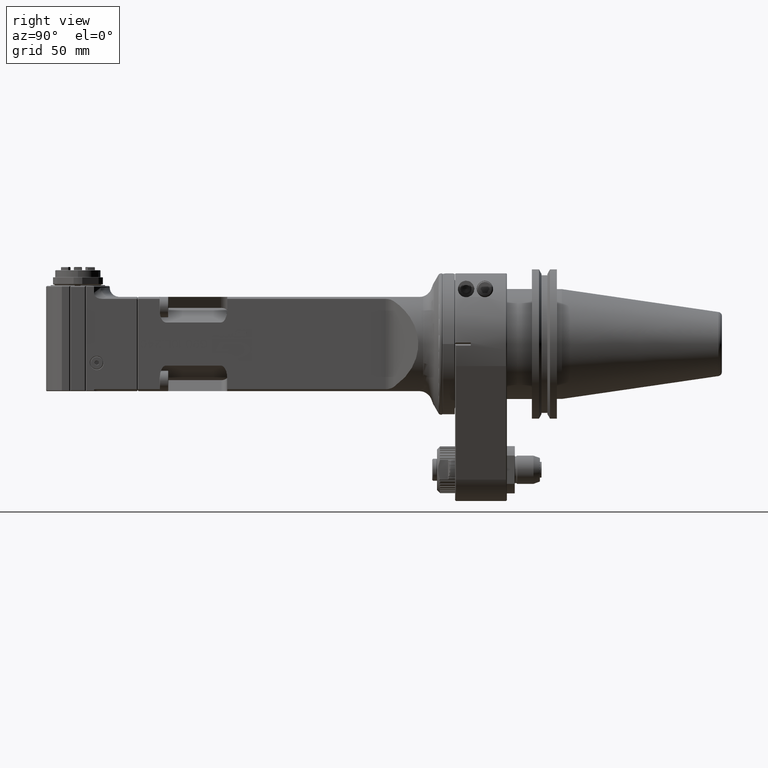
[diagram: clean part render]
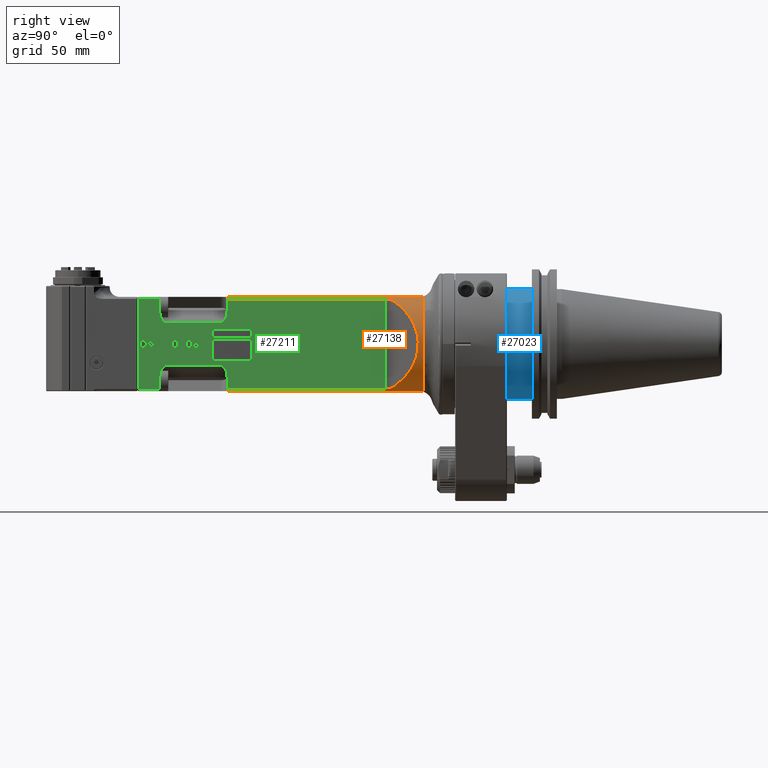
[diagram: same view with three faces highlighted in distinct colors, each labeled with its STEP entity id]
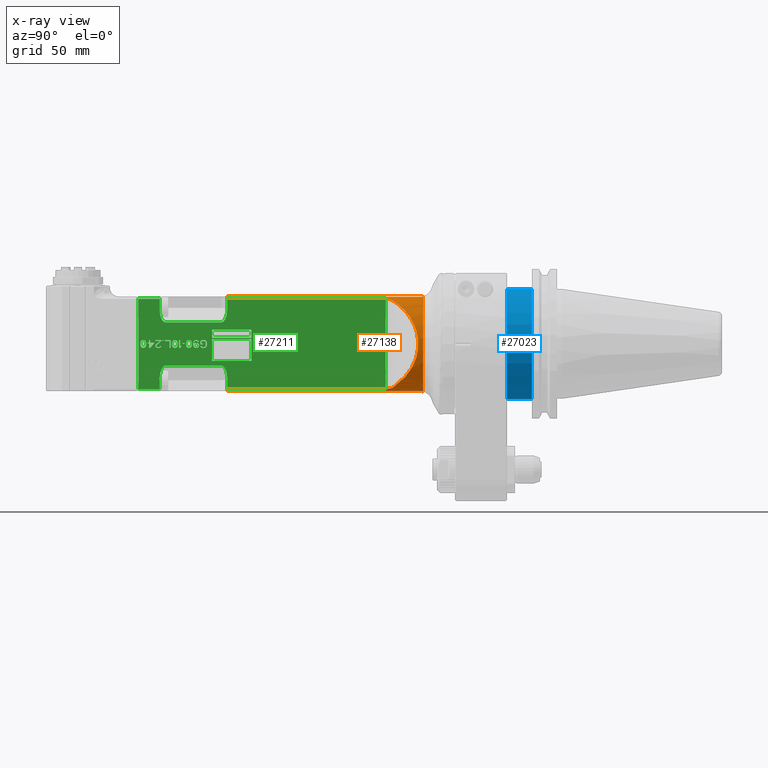
[diagram: x-ray of the same camera — body ghosted, the three highlighted faces saturated]
A machine part, right view with three faces highlighted in distinct colors.
The next image is the same camera in x-ray (body ghosted, the three faces saturated) — at least one of them is partly hidden behind the body in this view.
Their STEP definitions:

[orange] entity #27138 — the highlighted cylindrical surface (partial cylindrical patch) has radius 35 mm, axis along (0, -1, -0).
#605=ELLIPSE('',#29300,54.4503339401173,35.);
#1209=CIRCLE('',#29248,35.);
#1228=CIRCLE('',#29296,35.);
#1229=CIRCLE('',#29301,35.);
#1731=B_SPLINE_CURVE_WITH_KNOTS('',3,(#43467,#43468,#43469,#43470,#43471,
#43472,#43473,#43474,#43475,#43476,#43477,#43478,#43479,#43480,#43481,#43482,
#43483,#43484,#43485,#43486,#43487,#43488,#43489,#43490,#43491,#43492,#43493,
#43494,#43495,#43496,#43497),.UNSPECIFIED.,.F.,.F.,(4,3,3,3,3,3,3,3,3,3,
4),(0.,0.1,0.2,0.3,0.4,0.5,0.6,0.7,0.8,0.9,1.),.UNSPECIFIED.);
#1735=B_SPLINE_CURVE_WITH_KNOTS('',3,(#43776,#43777,#43778,#43779,#43780,
#43781,#43782,#43783,#43784,#43785,#43786,#43787,#43788,#43789,#43790,#43791,
#43792,#43793,#43794,#43795,#43796,#43797,#43798,#43799,#43800,#43801,#43802,
#43803,#43804,#43805,#43806,#43807,#43808,#43809,#43810,#43811,#43812,#43813,
#43814,#43815,#43816,#43817,#43818,#43819,#43820,#43821,#43822,#43823,#43824,
#43825,#43826,#43827),.UNSPECIFIED.,.F.,.F.,(4,3,3,3,3,3,3,3,3,3,3,3,3,
3,3,3,3,4),(0.,0.05882352941176,0.1176470588235,0.1764705882353,0.2352941176471,
0.2941176470588,0.3529411764706,0.4117647058824,0.4705882352941,0.5294117647059,
0.5882352941176,0.6470588235294,0.7058823529412,0.7647058823529,0.8235294117647,
0.8823529411765,0.9411764705882,1.),.UNSPECIFIED.);
#1736=B_SPLINE_CURVE_WITH_KNOTS('',3,(#43831,#43832,#43833,#43834,#43835,
#43836,#43837,#43838,#43839,#43840,#43841,#43842,#43843,#43844,#43845,#43846,
#43847,#43848,#43849,#43850,#43851,#43852,#43853,#43854,#43855,#43856,#43857,
#43858,#43859,#43860,#43861,#43862,#43863,#43864,#43865,#43866,#43867,#43868,
#43869,#43870,#43871,#43872,#43873,#43874,#43875,#43876,#43877,#43878,#43879,
#43880,#43881,#43882),.UNSPECIFIED.,.F.,.F.,(4,3,3,3,3,3,3,3,3,3,3,3,3,
3,3,3,3,4),(0.,0.05882352941176,0.1176470588235,0.1764705882353,0.2352941176471,
0.2941176470588,0.3529411764706,0.4117647058824,0.4705882352941,0.5294117647059,
0.5882352941176,0.6470588235294,0.7058823529412,0.7647058823529,0.8235294117647,
0.8823529411765,0.9411764705882,1.),.UNSPECIFIED.);
#1737=B_SPLINE_CURVE_WITH_KNOTS('',3,(#43889,#43890,#43891,#43892,#43893,
#43894,#43895,#43896,#43897,#43898,#43899,#43900,#43901,#43902,#43903,#43904,
#43905,#43906,#43907,#43908,#43909,#43910,#43911,#43912,#43913,#43914,#43915,
#43916,#43917,#43918,#43919),.UNSPECIFIED.,.F.,.F.,(4,3,3,3,3,3,3,3,3,3,
4),(0.,0.1,0.2,0.3,0.4,0.5,0.6,0.7,0.8,0.9,1.),.UNSPECIFIED.);
#2095=CYLINDRICAL_SURFACE('',#29299,35.);
#2757=FACE_OUTER_BOUND('',#4377,.T.);
#4377=EDGE_LOOP('',(#20386,#20387,#20388,#20389,#20390,#20391,#20392,#20393,
#20394,#20395,#20396,#20397));
#6273=LINE('',#43698,#8908);
#6293=LINE('',#43774,#8928);
#6294=LINE('',#43884,#8929);
#6295=LINE('',#43888,#8930);
#8908=VECTOR('',#33727,122.4387861803);
#8928=VECTOR('',#33809,100.794398311);
#8929=VECTOR('',#33812,100.794398311);
#8930=VECTOR('',#33815,122.4387861803);
#11670=VERTEX_POINT('',#43097);
#11671=VERTEX_POINT('',#43174);
#11677=VERTEX_POINT('',#43465);
#11706=VERTEX_POINT('',#43696);
#11730=VERTEX_POINT('',#43765);
#11731=VERTEX_POINT('',#43773);
#11732=VERTEX_POINT('',#43775);
#11733=VERTEX_POINT('',#43828);
#11734=VERTEX_POINT('',#43830);
#11735=VERTEX_POINT('',#43883);
#11736=VERTEX_POINT('',#43885);
#11737=VERTEX_POINT('',#43887);
#14814=EDGE_CURVE('',#11671,#11670,#1209,.T.);
#14823=EDGE_CURVE('',#11670,#11677,#1731,.T.);
#14857=EDGE_CURVE('',#11677,#11706,#6273,.T.);
#14892=EDGE_CURVE('',#11730,#11706,#1228,.T.);
#14895=EDGE_CURVE('',#11731,#11730,#6293,.T.);
#14896=EDGE_CURVE('',#11731,#11732,#1735,.T.);
#14897=EDGE_CURVE('',#11733,#11732,#605,.T.);
#14898=EDGE_CURVE('',#11733,#11734,#1736,.T.);
#14899=EDGE_CURVE('',#11734,#11735,#6294,.T.);
#14900=EDGE_CURVE('',#11736,#11735,#1229,.T.);
#14901=EDGE_CURVE('',#11737,#11736,#6295,.T.);
#14902=EDGE_CURVE('',#11737,#11671,#1737,.T.);
#20386=ORIENTED_EDGE('',*,*,#14892,.F.);
#20387=ORIENTED_EDGE('',*,*,#14895,.F.);
#20388=ORIENTED_EDGE('',*,*,#14896,.T.);
#20389=ORIENTED_EDGE('',*,*,#14897,.F.);
#20390=ORIENTED_EDGE('',*,*,#14898,.T.);
#20391=ORIENTED_EDGE('',*,*,#14899,.T.);
#20392=ORIENTED_EDGE('',*,*,#14900,.F.);
#20393=ORIENTED_EDGE('',*,*,#14901,.F.);
#20394=ORIENTED_EDGE('',*,*,#14902,.T.);
#20395=ORIENTED_EDGE('',*,*,#14814,.T.);
#20396=ORIENTED_EDGE('',*,*,#14823,.T.);
#20397=ORIENTED_EDGE('',*,*,#14857,.T.);
#27138=ADVANCED_FACE('',(#2757),#2095,.T.);
#29248=AXIS2_PLACEMENT_3D('',#43175,#33664,#33665);
#29296=AXIS2_PLACEMENT_3D('',#43767,#33799,#33800);
#29299=AXIS2_PLACEMENT_3D('',#43772,#33807,#33808);
#29300=AXIS2_PLACEMENT_3D('',#43829,#33810,#33811);
#29301=AXIS2_PLACEMENT_3D('',#43886,#33813,#33814);
#33664=DIRECTION('center_axis',(0.,1.,0.));
#33665=DIRECTION('ref_axis',(0.865703462490004,0.,-0.500557204555902));
#33727=DIRECTION('',(0.,1.,0.));
#33799=DIRECTION('center_axis',(0.,1.,0.));
#33800=DIRECTION('ref_axis',(-0.82065180664828,0.,-0.571428571428586));
#33807=DIRECTION('center_axis',(0.,1.,0.));
#33808=DIRECTION('ref_axis',(1.,0.,0.));
#33809=DIRECTION('',(0.,1.,0.));
#33810=DIRECTION('center_axis',(0.,0.642787609686505,-0.766044443119007));
#33811=DIRECTION('ref_axis',(0.,-0.766044443119006,-0.642787609686505));
#33812=DIRECTION('',(0.,1.,0.));
#33813=DIRECTION('center_axis',(0.,1.,0.));
#33814=DIRECTION('ref_axis',(0.857142857142874,0.,-0.515078753637684));
#33815=DIRECTION('',(0.,1.,0.));
#43097=CARTESIAN_POINT('',(-30.29962118715,45.39230484541,-17.51950215946));
#43174=CARTESIAN_POINT('',(30.29962118715,45.39230484541,-17.51950215946));
#43175=CARTESIAN_POINT('Origin',(0.,45.39230484541,0.));
#43465=CARTESIAN_POINT('',(-30.,47.56121381967,-18.02775637732));
#43467=CARTESIAN_POINT('Ctrl Pts',(-30.2996211871509,45.3923048454103,-17.51950215946));
#43468=CARTESIAN_POINT('Ctrl Pts',(-30.2790287224313,45.4654152345104,-17.55511640663));
#43469=CARTESIAN_POINT('Ctrl Pts',(-30.2595670496406,45.5385007685429,-17.588630999535));
#43470=CARTESIAN_POINT('Ctrl Pts',(-30.2412152547139,45.6115319799033,-17.6201276930108));
#43471=CARTESIAN_POINT('Ctrl Pts',(-30.2228634597873,45.6845631912636,-17.6516243864867));
#43472=CARTESIAN_POINT('Ctrl Pts',(-30.20562202093,45.7575402031337,-17.6811031805333));
#43473=CARTESIAN_POINT('Ctrl Pts',(-30.1894799390827,45.8303826961895,-17.7086222221733));
#43474=CARTESIAN_POINT('Ctrl Pts',(-30.1733378572355,45.9032251892453,-17.7361412638133));
#43475=CARTESIAN_POINT('Ctrl Pts',(-30.1582944875,45.9759330360161,-17.7617005530467));
#43476=CARTESIAN_POINT('Ctrl Pts',(-30.1443216476482,46.0484951993077,-17.785383673205));
#43477=CARTESIAN_POINT('Ctrl Pts',(-30.1303488077964,46.1210573625992,-17.8090667933633));
#43478=CARTESIAN_POINT('Ctrl Pts',(-30.1174453908764,46.1934736112436,-17.8308737444467));
#43479=CARTESIAN_POINT('Ctrl Pts',(-30.1055683455861,46.265857168478,-17.8509034670283));
#43480=CARTESIAN_POINT('Ctrl Pts',(-30.0936913002958,46.3382407257124,-17.87093318961));
#43481=CARTESIAN_POINT('Ctrl Pts',(-30.0828423235195,46.4105918600217,-17.88918568369));
#43482=CARTESIAN_POINT('Ctrl Pts',(-30.0730136577342,46.4828411894853,-17.9056932158933));
#43483=CARTESIAN_POINT('Ctrl Pts',(-30.0631849919489,46.555090518949,-17.9222007480967));
#43484=CARTESIAN_POINT('Ctrl Pts',(-30.0543764378429,46.6272380475776,-17.9369633184233));
#43485=CARTESIAN_POINT('Ctrl Pts',(-30.0465734708276,46.6992356035553,-17.9500257008783));
#43486=CARTESIAN_POINT('Ctrl Pts',(-30.0387705038122,46.7712331595329,-17.9630880833333));
#43487=CARTESIAN_POINT('Ctrl Pts',(-30.0319713026779,46.8430805289459,-17.9744502779167));
#43488=CARTESIAN_POINT('Ctrl Pts',(-30.0261476331276,46.9149333609499,-17.984172438945));
#43489=CARTESIAN_POINT('Ctrl Pts',(-30.0203239635773,46.986786192954,-17.9938945999733));
#43490=CARTESIAN_POINT('Ctrl Pts',(-30.0154774122063,47.0586446028581,-18.0019767274467));
#43491=CARTESIAN_POINT('Ctrl Pts',(-30.0116036013363,47.1304900360035,-18.0084327268167));
#43492=CARTESIAN_POINT('Ctrl Pts',(-30.0077297904662,47.2023354691489,-18.0148887261867));
#43493=CARTESIAN_POINT('Ctrl Pts',(-30.0048288147981,47.2741679477305,-18.0197185974533));
#43494=CARTESIAN_POINT('Ctrl Pts',(-30.0028964534055,47.3459584711968,-18.0229355102367));
#43495=CARTESIAN_POINT('Ctrl Pts',(-30.000964092013,47.417748994663,-18.02615242302));
#43496=CARTESIAN_POINT('Ctrl Pts',(-30.,47.48949755093,-18.02775637732));
#43497=CARTESIAN_POINT('Ctrl Pts',(-30.,47.56121381967,-18.02775637732));
#43696=CARTESIAN_POINT('',(-30.,170.,-18.02775637732));
#43698=CARTESIAN_POINT('',(-30.,47.56121381967,-18.02775637732));
#43765=CARTESIAN_POINT('',(-28.72281323269,170.,-20.));
#43767=CARTESIAN_POINT('Origin',(1.040949779275E-14,170.,0.));
#43772=CARTESIAN_POINT('Origin',(0.,-11.35,0.));
#43773=CARTESIAN_POINT('',(-28.72281323269,69.20560168898,-20.));
#43774=CARTESIAN_POINT('',(-28.72281323269,69.20560168898,-20.));
#43775=CARTESIAN_POINT('',(-27.32455249097,64.06330081149,-21.87164445505));
#43776=CARTESIAN_POINT('Ctrl Pts',(-28.72281323269,69.20560168898,-20.));
#43777=CARTESIAN_POINT('Ctrl Pts',(-28.72281323269,69.09772945297,-20.));
#43778=CARTESIAN_POINT('Ctrl Pts',(-28.721296651535,68.9899387187069,-20.0021799598254));
#43779=CARTESIAN_POINT('Ctrl Pts',(-28.7182574181292,68.8821570350484,-20.0065412019675));
#43780=CARTESIAN_POINT('Ctrl Pts',(-28.7152181847233,68.7743753513899,-20.0109024441096));
#43781=CARTESIAN_POINT('Ctrl Pts',(-28.7106562990667,68.6666028072849,-20.0174488753096));
#43782=CARTESIAN_POINT('Ctrl Pts',(-28.7045737015217,68.5590564891883,-20.026169094806));
#43783=CARTESIAN_POINT('Ctrl Pts',(-28.6984911039767,68.4515101710915,-20.0348893143025));
#43784=CARTESIAN_POINT('Ctrl Pts',(-28.6908877945433,68.3441897584174,-20.0457793486134));
#43785=CARTESIAN_POINT('Ctrl Pts',(-28.6817449150383,68.2370178702684,-20.0588511293308));
#43786=CARTESIAN_POINT('Ctrl Pts',(-28.6726020355333,68.1298459821194,-20.0719229100483));
#43787=CARTESIAN_POINT('Ctrl Pts',(-28.6619195859567,68.022823072899,-20.0871798127956));
#43788=CARTESIAN_POINT('Ctrl Pts',(-28.6496913350366,67.9161230530863,-20.104606099277));
#43789=CARTESIAN_POINT('Ctrl Pts',(-28.6374630841167,67.8094230332737,-20.1220323857584));
#43790=CARTESIAN_POINT('Ctrl Pts',(-28.6236890318533,67.7030455845178,-20.141626554256));
#43791=CARTESIAN_POINT('Ctrl Pts',(-28.6083552093984,67.5970516279312,-20.1633829555669));
#43792=CARTESIAN_POINT('Ctrl Pts',(-28.5930213869434,67.4910576713445,-20.1851393568777));
#43793=CARTESIAN_POINT('Ctrl Pts',(-28.5761277942967,67.3854471064201,-20.2090571356795));
#43794=CARTESIAN_POINT('Ctrl Pts',(-28.55763883595,67.2802205772063,-20.2351492239435));
#43795=CARTESIAN_POINT('Ctrl Pts',(-28.5391498776033,67.1749940479925,-20.2612413122075));
#43796=CARTESIAN_POINT('Ctrl Pts',(-28.5190655535566,67.0701521663544,-20.2895103800274));
#43797=CARTESIAN_POINT('Ctrl Pts',(-28.49738637889,66.9658911160398,-20.3199155896917));
#43798=CARTESIAN_POINT('Ctrl Pts',(-28.4757072042233,66.8616300657255,-20.350320799356));
#43799=CARTESIAN_POINT('Ctrl Pts',(-28.4524331789367,66.7579488388689,-20.3828586643937));
#43800=CARTESIAN_POINT('Ctrl Pts',(-28.4275063067684,66.6547878016117,-20.4175631547629));
#43801=CARTESIAN_POINT('Ctrl Pts',(-28.4025794346,66.5516267643543,-20.4522676451322));
#43802=CARTESIAN_POINT('Ctrl Pts',(-28.37599971555,66.4489869579453,-20.4891417543303));
#43803=CARTESIAN_POINT('Ctrl Pts',(-28.347753921725,66.34703158112,-20.5281476902679));
#43804=CARTESIAN_POINT('Ctrl Pts',(-28.3195081279,66.245076204295,-20.5671536262053));
#43805=CARTESIAN_POINT('Ctrl Pts',(-28.2895962593,66.1438045973822,-20.6082898316443));
#43806=CARTESIAN_POINT('Ctrl Pts',(-28.2579757516634,66.0432630862852,-20.6515569974377));
#43807=CARTESIAN_POINT('Ctrl Pts',(-28.2263552440267,65.942721575188,-20.6948241632312));
#43808=CARTESIAN_POINT('Ctrl Pts',(-28.1930260973534,65.8429101181209,-20.740222024483));
#43809=CARTESIAN_POINT('Ctrl Pts',(-28.157927565745,65.7438613736409,-20.7877635930901));
#43810=CARTESIAN_POINT('Ctrl Pts',(-28.1228290341367,65.644812629161,-20.8353051616973));
#43811=CARTESIAN_POINT('Ctrl Pts',(-28.0859611175933,65.5465274102147,-20.8849922575926));
#43812=CARTESIAN_POINT('Ctrl Pts',(-28.0473106973366,65.449168504313,-20.9367705878166));
#43813=CARTESIAN_POINT('Ctrl Pts',(-28.00866027708,65.3518095984114,-20.9885489180406));
#43814=CARTESIAN_POINT('Ctrl Pts',(-27.96822735311,65.2553755237531,-21.0424156320337));
#43815=CARTESIAN_POINT('Ctrl Pts',(-27.9259082697151,65.159826306376,-21.0984276028201));
#43816=CARTESIAN_POINT('Ctrl Pts',(-27.88358918632,65.0642770889987,-21.1544395736067));
#43817=CARTESIAN_POINT('Ctrl Pts',(-27.8393839435,64.9696144914793,-21.2125998153242));
#43818=CARTESIAN_POINT('Ctrl Pts',(-27.7932792211433,64.8760186386548,-21.2728378486663));
#43819=CARTESIAN_POINT('Ctrl Pts',(-27.7471744987866,64.7824227858302,-21.3330758820084));
#43820=CARTESIAN_POINT('Ctrl Pts',(-27.6991702968933,64.6898919422232,-21.3953890380869));
#43821=CARTESIAN_POINT('Ctrl Pts',(-27.6491542995632,64.5984154477547,-21.4598291353616));
#43822=CARTESIAN_POINT('Ctrl Pts',(-27.5991383022333,64.5069389532864,-21.5242692326362));
#43823=CARTESIAN_POINT('Ctrl Pts',(-27.5471105094667,64.4165183598462,-21.5908384231947));
#43824=CARTESIAN_POINT('Ctrl Pts',(-27.4930340153459,64.3273019740535,-21.6594801560638));
#43825=CARTESIAN_POINT('Ctrl Pts',(-27.4389575212251,64.2380855882607,-21.7281218889332));
#43826=CARTESIAN_POINT('Ctrl Pts',(-27.38283232575,64.1500721710788,-21.7988346392185));
#43827=CARTESIAN_POINT('Ctrl Pts',(-27.32455249097,64.0633008114881,-21.8716444550478));
#43828=CARTESIAN_POINT('',(27.32455249097,64.06330081149,-21.87164445505));
#43829=CARTESIAN_POINT('Origin',(0.,90.1289116667414,0.));
#43830=CARTESIAN_POINT('',(28.72281323269,69.20560168898,-20.));
#43831=CARTESIAN_POINT('Ctrl Pts',(27.32455249097,64.0633008114881,-21.8716444550478));
#43832=CARTESIAN_POINT('Ctrl Pts',(27.38283244385,64.1500723469044,-21.7988344916833));
#43833=CARTESIAN_POINT('Ctrl Pts',(27.4389580994,64.2380863567361,-21.7281212167145));
#43834=CARTESIAN_POINT('Ctrl Pts',(27.4930362061984,64.3273055885203,-21.6594773751496));
#43835=CARTESIAN_POINT('Ctrl Pts',(27.5471143129967,64.4165248203045,-21.5908335335847));
#43836=CARTESIAN_POINT('Ctrl Pts',(27.5991448710433,64.5069505885375,-21.5242607434276));
#43837=CARTESIAN_POINT('Ctrl Pts',(27.6491619501499,64.5984294405554,-21.4598192782351));
#43838=CARTESIAN_POINT('Ctrl Pts',(27.6991790292566,64.6899082925733,-21.3953778130425));
#43839=CARTESIAN_POINT('Ctrl Pts',(27.7471826294233,64.7824385677676,-21.3330653666202));
#43840=CARTESIAN_POINT('Ctrl Pts',(27.7932881889667,64.8760368435718,-21.2728261320667));
#43841=CARTESIAN_POINT('Ctrl Pts',(27.83939374851,64.969635119376,-21.2125868975131));
#43842=CARTESIAN_POINT('Ctrl Pts',(27.8836012674301,65.0643032147815,-21.1544236811109));
#43843=CARTESIAN_POINT('Ctrl Pts',(27.9259220155034,65.1598573430941,-21.0984094088586));
#43844=CARTESIAN_POINT('Ctrl Pts',(27.9682427635767,65.2554114714065,-21.0423951366063));
#43845=CARTESIAN_POINT('Ctrl Pts',(28.0086767408033,65.3518498769885,-20.9885267888467));
#43846=CARTESIAN_POINT('Ctrl Pts',(28.0473265931416,65.4492085443989,-20.9367492934666));
#43847=CARTESIAN_POINT('Ctrl Pts',(28.0859764454799,65.5465672118094,-20.8849717980865));
#43848=CARTESIAN_POINT('Ctrl Pts',(28.12284217293,65.6448474680435,-20.8352877390057));
#43849=CARTESIAN_POINT('Ctrl Pts',(28.15794226133,65.7439028460082,-20.7877436872663));
#43850=CARTESIAN_POINT('Ctrl Pts',(28.19304234973,65.8429582239729,-20.7401996355269));
#43851=CARTESIAN_POINT('Ctrl Pts',(28.22637679908,65.9427882147804,-20.6947943843327));
#43852=CARTESIAN_POINT('Ctrl Pts',(28.2579971146151,66.0433310133027,-20.651527766008));
#43853=CARTESIAN_POINT('Ctrl Pts',(28.28961743015,66.1438738118248,-20.6082611476834));
#43854=CARTESIAN_POINT('Ctrl Pts',(28.31952361187,66.2451291099251,-20.5671326142869));
#43855=CARTESIAN_POINT('Ctrl Pts',(28.3477675870983,66.3470809069737,-20.528128819443));
#43856=CARTESIAN_POINT('Ctrl Pts',(28.3760115623266,66.4490327040225,-20.4891250245991));
#43857=CARTESIAN_POINT('Ctrl Pts',(28.4025933310634,66.5516819081565,-20.452248202046));
#43858=CARTESIAN_POINT('Ctrl Pts',(28.4275205428317,66.6548467213545,-20.417543333778));
#43859=CARTESIAN_POINT('Ctrl Pts',(28.4524477546,66.7580115345524,-20.3828384655101));
#43860=CARTESIAN_POINT('Ctrl Pts',(28.4757204094,66.861690832575,-20.3503022645224));
#43861=CARTESIAN_POINT('Ctrl Pts',(28.4973978686716,66.9659463714904,-20.3198994759938));
#43862=CARTESIAN_POINT('Ctrl Pts',(28.5190753279433,67.070201910406,-20.2894966874651));
#43863=CARTESIAN_POINT('Ctrl Pts',(28.5391575916866,67.1750346401327,-20.2612306493743));
#43864=CARTESIAN_POINT('Ctrl Pts',(28.5576461359267,67.2802621260312,-20.2351389215683));
#43865=CARTESIAN_POINT('Ctrl Pts',(28.5761346801667,67.3854896119298,-20.2090471937622));
#43866=CARTESIAN_POINT('Ctrl Pts',(28.5930295049034,67.4911113737869,-20.1851276042343));
#43867=CARTESIAN_POINT('Ctrl Pts',(28.608362699995,67.5971034061953,-20.1633723276987));
#43868=CARTESIAN_POINT('Ctrl Pts',(28.6236958950867,67.7030954386035,-20.1416170511631));
#43869=CARTESIAN_POINT('Ctrl Pts',(28.6374674605333,67.8094577195703,-20.1220263419809));
#43870=CARTESIAN_POINT('Ctrl Pts',(28.6496944645933,67.9161503599361,-20.1046016395608));
#43871=CARTESIAN_POINT('Ctrl Pts',(28.6619214686533,68.0228430003021,-20.0871769371406));
#43872=CARTESIAN_POINT('Ctrl Pts',(28.6726039113267,68.1298663779425,-20.0719201513508));
#43873=CARTESIAN_POINT('Ctrl Pts',(28.6817466030433,68.2370376592647,-20.0588487156873));
#43874=CARTESIAN_POINT('Ctrl Pts',(28.69088929476,68.3442089405868,-20.0457772800238));
#43875=CARTESIAN_POINT('Ctrl Pts',(28.69849223552,68.4515276639501,-20.0348876994014));
#43876=CARTESIAN_POINT('Ctrl Pts',(28.7045745204567,68.5590709660916,-20.0261679209829));
#43877=CARTESIAN_POINT('Ctrl Pts',(28.7106568053933,68.6666142682328,-20.0174481425645));
#43878=CARTESIAN_POINT('Ctrl Pts',(28.7152184345067,68.7743824626565,-20.0109020973348));
#43879=CARTESIAN_POINT('Ctrl Pts',(28.7182575413308,68.8821614057264,-20.006541025115));
#43880=CARTESIAN_POINT('Ctrl Pts',(28.721296648155,68.9899403487965,-20.0021799528953));
#43881=CARTESIAN_POINT('Ctrl Pts',(28.72281323269,69.09772995394,-20.));
#43882=CARTESIAN_POINT('Ctrl Pts',(28.72281323269,69.20560168898,-20.));
#43883=CARTESIAN_POINT('',(28.72281323269,170.,-20.));
#43884=CARTESIAN_POINT('',(28.72281323269,69.20560168898,-20.));
#43885=CARTESIAN_POINT('',(30.,170.,-18.02775637732));
#43886=CARTESIAN_POINT('Origin',(1.040949779275E-14,170.,0.));
#43887=CARTESIAN_POINT('',(30.,47.56121381967,-18.02775637732));
#43888=CARTESIAN_POINT('',(30.,47.56121381967,-18.02775637732));
#43889=CARTESIAN_POINT('Ctrl Pts',(30.,47.56121381967,-18.02775637732));
#43890=CARTESIAN_POINT('Ctrl Pts',(30.,47.48950305572,-18.02775637732));
#43891=CARTESIAN_POINT('Ctrl Pts',(30.0009639400379,47.4177595996983,-18.02615269016));
#43892=CARTESIAN_POINT('Ctrl Pts',(30.0028960535116,47.3459733284509,-18.0229361759467));
#43893=CARTESIAN_POINT('Ctrl Pts',(30.0048281669854,47.2741870572035,-18.0197196617333));
#43894=CARTESIAN_POINT('Ctrl Pts',(30.0077288147204,47.2023579827477,-18.0148903204667));
#43895=CARTESIAN_POINT('Ctrl Pts',(30.0116021779129,47.1305164362632,-18.0084350989933));
#43896=CARTESIAN_POINT('Ctrl Pts',(30.0154755411053,47.0586748897787,-18.00197987752));
#43897=CARTESIAN_POINT('Ctrl Pts',(30.020321480274,46.9868208469661,-17.99389877584));
#43898=CARTESIAN_POINT('Ctrl Pts',(30.0261447261447,46.9149692285047,-17.9841772924017));
#43899=CARTESIAN_POINT('Ctrl Pts',(30.0319679720154,46.8431176100433,-17.9744558089633));
#43900=CARTESIAN_POINT('Ctrl Pts',(30.0387669922512,46.7712683053334,-17.9630939437667));
#43901=CARTESIAN_POINT('Ctrl Pts',(30.0465699516566,46.6992680753748,-17.95003159162));
#43902=CARTESIAN_POINT('Ctrl Pts',(30.054372911062,46.6272678454162,-17.9369692394733));
#43903=CARTESIAN_POINT('Ctrl Pts',(30.063181622874,46.5551169027157,-17.9222064003767));
#43904=CARTESIAN_POINT('Ctrl Pts',(30.0730104326058,46.4828648972784,-17.90569863257));
#43905=CARTESIAN_POINT('Ctrl Pts',(30.0828392423376,46.4106128918412,-17.8891908647633));
#43906=CARTESIAN_POINT('Ctrl Pts',(30.0936883350961,46.338259817683,-17.8709381682467));
#43907=CARTESIAN_POINT('Ctrl Pts',(30.1055654270093,46.2658749556002,-17.8509083892117));
#43908=CARTESIAN_POINT('Ctrl Pts',(30.1174425189225,46.1934900935174,-17.8308786101767));
#43909=CARTESIAN_POINT('Ctrl Pts',(30.1303458948923,46.1210731724567,-17.8090717486233));
#43910=CARTESIAN_POINT('Ctrl Pts',(30.1443190045788,46.0485089250598,-17.785388152925));
#43911=CARTESIAN_POINT('Ctrl Pts',(30.1582921142653,45.9759446776628,-17.7617045572267));
#43912=CARTESIAN_POINT('Ctrl Pts',(30.1733361053777,45.9032333428764,-17.7361442273833));
#43913=CARTESIAN_POINT('Ctrl Pts',(30.1894786933055,45.8303883178731,-17.7086243459633));
#43914=CARTESIAN_POINT('Ctrl Pts',(30.2056212812332,45.7575432928698,-17.6811044645433));
#43915=CARTESIAN_POINT('Ctrl Pts',(30.2228630869295,45.6845646994767,-17.6516250315467));
#43916=CARTESIAN_POINT('Ctrl Pts',(30.2412151006225,45.6115325931121,-17.6201279574733));
#43917=CARTESIAN_POINT('Ctrl Pts',(30.2595671143156,45.5385004867475,-17.5886308834));
#43918=CARTESIAN_POINT('Ctrl Pts',(30.2790288602628,45.4654147451608,-17.55511616825));
#43919=CARTESIAN_POINT('Ctrl Pts',(30.2996211871509,45.3923048454103,-17.51950215946));

[blue] entity #27023 — the highlighted cylindrical surface (bore or boss wall) has radius 35 mm, axis along (0, -1, 0).
#1058=CIRCLE('',#28977,35.);
#1071=CIRCLE('',#29008,35.);
#2053=CYLINDRICAL_SURFACE('',#29007,35.);
#2642=FACE_OUTER_BOUND('',#4232,.T.);
#4232=EDGE_LOOP('',(#19798,#19799,#19800,#19801));
#6168=LINE('',#41843,#8803);
#8803=VECTOR('',#33102,35.);
#11483=VERTEX_POINT('',#41773);
#11496=VERTEX_POINT('',#41841);
#14530=EDGE_CURVE('',#11483,#11483,#1058,.T.);
#14559=EDGE_CURVE('',#11496,#11496,#1071,.T.);
#14560=EDGE_CURVE('',#11496,#11483,#6168,.T.);
#19798=ORIENTED_EDGE('',*,*,#14559,.T.);
#19799=ORIENTED_EDGE('',*,*,#14560,.T.);
#19800=ORIENTED_EDGE('',*,*,#14530,.T.);
#19801=ORIENTED_EDGE('',*,*,#14560,.F.);
#27023=ADVANCED_FACE('',(#2642),#2053,.T.);
#28977=AXIS2_PLACEMENT_3D('',#41774,#33026,#33027);
#29007=AXIS2_PLACEMENT_3D('',#41840,#33098,#33099);
#29008=AXIS2_PLACEMENT_3D('',#41842,#33100,#33101);
#33026=DIRECTION('center_axis',(0.,-1.,0.));
#33027=DIRECTION('ref_axis',(0.,0.,1.));
#33098=DIRECTION('center_axis',(0.,-1.,0.));
#33099=DIRECTION('ref_axis',(0.,0.,1.));
#33100=DIRECTION('center_axis',(0.,1.,0.));
#33101=DIRECTION('ref_axis',(0.,0.,-1.));
#33102=DIRECTION('',(0.,1.,0.));
#41773=CARTESIAN_POINT('',(4.28626379701574E-15,48.9,-35.));
#41774=CARTESIAN_POINT('Origin',(0.,48.9,-9.73494205299982E-17));
#41840=CARTESIAN_POINT('Origin',(0.,49.695,-9.73494205299982E-17));
#41841=CARTESIAN_POINT('',(4.28626379701574E-15,33.,-35.));
#41842=CARTESIAN_POINT('Origin',(0.,33.,-9.73494205299982E-17));
#41843=CARTESIAN_POINT('',(4.28626379701574E-15,49.695,-35.));

[green] entity #27211 — the highlighted planar face has unit normal (-1, -0, 0).
#204=FACE_BOUND('',#4462,.T.);
#205=FACE_BOUND('',#4463,.T.);
#206=FACE_BOUND('',#4464,.T.);
#207=FACE_BOUND('',#4465,.T.);
#208=FACE_BOUND('',#4466,.T.);
#209=FACE_BOUND('',#4467,.T.);
#210=FACE_BOUND('',#4468,.T.);
#211=FACE_BOUND('',#4469,.T.);
#212=FACE_BOUND('',#4470,.T.);
#213=FACE_BOUND('',#4471,.T.);
#214=FACE_BOUND('',#4472,.T.);
#215=FACE_BOUND('',#4473,.T.);
#216=FACE_BOUND('',#4474,.T.);
#604=ELLIPSE('',#29294,8.03012161947752,4.);
#620=ELLIPSE('',#29433,8.03012161947752,4.);
#621=ELLIPSE('',#29434,8.03012161947752,4.);
#622=ELLIPSE('',#29435,8.03012161947752,4.);
#2830=FACE_OUTER_BOUND('',#4461,.T.);
#4461=EDGE_LOOP('',(#20778,#20779,#20780,#20781,#20782,#20783,#20784,#20785,
#20786,#20787,#20788,#20789,#20790,#20791,#20792,#20793));
#4462=EDGE_LOOP('',(#20794,#20795,#20796,#20797));
#4463=EDGE_LOOP('',(#20798,#20799,#20800,#20801));
#4464=EDGE_LOOP('',(#20802,#20803,#20804,#20805,#20806,#20807,#20808,#20809,
#20810,#20811,#20812,#20813,#20814,#20815,#20816,#20817,#20818,#20819,#20820,
#20821,#20822,#20823,#20824,#20825,#20826,#20827,#20828,#20829,#20830,#20831,
#20832,#20833,#20834,#20835,#20836,#20837,#20838,#20839,#20840,#20841,#20842,
#20843,#20844,#20845));
#4465=EDGE_LOOP('',(#20846,#20847,#20848,#20849,#20850,#20851,#20852,#20853,
#20854,#20855,#20856,#20857,#20858,#20859,#20860,#20861,#20862,#20863,#20864,
#20865,#20866,#20867,#20868,#20869,#20870,#20871,#20872,#20873,#20874,#20875,
#20876,#20877,#20878,#20879,#20880,#20881,#20882,#20883,#20884,#20885));
#4466=EDGE_LOOP('',(#20886,#20887,#20888,#20889,#20890,#20891,#20892,#20893,
#20894,#20895,#20896,#20897,#20898,#20899,#20900,#20901,#20902,#20903,#20904,
#20905,#20906,#20907,#20908,#20909,#20910,#20911));
#4467=EDGE_LOOP('',(#20912,#20913,#20914,#20915));
#4468=EDGE_LOOP('',(#20916,#20917,#20918,#20919,#20920,#20921,#20922));
#4469=EDGE_LOOP('',(#20923,#20924,#20925,#20926,#20927,#20928,#20929,#20930,
#20931,#20932,#20933,#20934,#20935,#20936,#20937,#20938,#20939,#20940,#20941,
#20942,#20943,#20944,#20945,#20946,#20947,#20948));
#4470=EDGE_LOOP('',(#20949,#20950,#20951,#20952,#20953,#20954));
#4471=EDGE_LOOP('',(#20955,#20956,#20957,#20958));
#4472=EDGE_LOOP('',(#20959,#20960,#20961,#20962,#20963,#20964,#20965,#20966,
#20967,#20968,#20969,#20970,#20971,#20972,#20973,#20974,#20975,#20976,#20977,
#20978,#20979,#20980,#20981,#20982,#20983,#20984,#20985,#20986));
#4473=EDGE_LOOP('',(#20987,#20988,#20989,#20990,#20991,#20992,#20993,#20994,
#20995,#20996,#20997));
#4474=EDGE_LOOP('',(#20998,#20999,#21000,#21001,#21002,#21003,#21004,#21005,
#21006,#21007,#21008,#21009,#21010,#21011,#21012,#21013,#21014,#21015,#21016,
#21017,#21018,#21019,#21020,#21021,#21022,#21023));
#6279=LINE('',#43730,#8914);
#6281=LINE('',#43736,#8916);
#6290=LINE('',#43766,#8925);
#6293=LINE('',#43774,#8928);
#6294=LINE('',#43884,#8929);
#6420=LINE('',#44842,#9055);
#6421=LINE('',#44846,#9056);
#6422=LINE('',#44848,#9057);
#6423=LINE('',#44852,#9058);
#6424=LINE('',#44855,#9059);
#6425=LINE('',#44856,#9060);
#6426=LINE('',#44858,#9061);
#6427=LINE('',#44862,#9062);
#6428=LINE('',#44864,#9063);
#6429=LINE('',#44866,#9064);
#6430=LINE('',#44867,#9065);
#6431=LINE('',#44870,#9066);
#6432=LINE('',#44872,#9067);
#6433=LINE('',#44874,#9068);
#6434=LINE('',#44875,#9069);
#6435=LINE('',#44878,#9070);
#6436=LINE('',#44880,#9071);
#6437=LINE('',#44882,#9072);
#6438=LINE('',#44884,#9073);
#6439=LINE('',#44886,#9074);
#6440=LINE('',#44888,#9075);
#6441=LINE('',#44890,#9076);
#6442=LINE('',#44892,#9077);
#6443=LINE('',#44894,#9078);
#6444=LINE('',#44896,#9079);
#6445=LINE('',#44898,#9080);
#6446=LINE('',#44900,#9081);
#6447=LINE('',#44902,#9082);
#6448=LINE('',#44904,#9083);
#6449=LINE('',#44906,#9084);
#6450=LINE('',#44908,#9085);
#6451=LINE('',#44910,#9086);
#6452=LINE('',#44912,#9087);
#6453=LINE('',#44914,#9088);
#6454=LINE('',#44916,#9089);
#6455=LINE('',#44918,#9090);
#6456=LINE('',#44920,#9091);
#6457=LINE('',#44922,#9092);
#6458=LINE('',#44924,#9093);
#6459=LINE('',#44926,#9094);
#6460=LINE('',#44928,#9095);
#6461=LINE('',#44930,#9096);
#6462=LINE('',#44932,#9097);
#6463=LINE('',#44934,#9098);
#6464=LINE('',#44936,#9099);
#6465=LINE('',#44938,#9100);
#6466=LINE('',#44940,#9101);
#6467=LINE('',#44942,#9102);
#6468=LINE('',#44944,#9103);
#6469=LINE('',#44946,#9104);
#6470=LINE('',#44948,#9105);
#6471=LINE('',#44950,#9106);
#6472=LINE('',#44952,#9107);
#6473=LINE('',#44954,#9108);
#6474=LINE('',#44956,#9109);
#6475=LINE('',#44958,#9110);
#6476=LINE('',#44960,#9111);
#6477=LINE('',#44962,#9112);
#6478=LINE('',#44963,#9113);
#6479=LINE('',#44966,#9114);
#6480=LINE('',#44968,#9115);
#6481=LINE('',#44970,#9116);
#6482=LINE('',#44972,#9117);
#6483=LINE('',#44974,#9118);
#6484=LINE('',#44976,#9119);
#6485=LINE('',#44978,#9120);
#6486=LINE('',#44980,#9121);
#6487=LINE('',#44982,#9122);
#6488=LINE('',#44984,#9123);
#6489=LINE('',#44986,#9124);
#6490=LINE('',#44988,#9125);
#6491=LINE('',#44990,#9126);
#6492=LINE('',#44992,#9127);
#6493=LINE('',#44994,#9128);
#6494=LINE('',#44996,#9129);
#6495=LINE('',#44998,#9130);
#6496=LINE('',#45000,#9131);
#6497=LINE('',#45002,#9132);
#6498=LINE('',#45004,#9133);
#6499=LINE('',#45006,#9134);
#6500=LINE('',#45008,#9135);
#6501=LINE('',#45010,#9136);
#6502=LINE('',#45012,#9137);
#6503=LINE('',#45014,#9138);
#6504=LINE('',#45016,#9139);
#6505=LINE('',#45018,#9140);
#6506=LINE('',#45020,#9141);
#6507=LINE('',#45022,#9142);
#6508=LINE('',#45024,#9143);
#6509=LINE('',#45026,#9144);
#6510=LINE('',#45028,#9145);
#6511=LINE('',#45030,#9146);
#6512=LINE('',#45032,#9147);
#6513=LINE('',#45034,#9148);
#6514=LINE('',#45036,#9149);
#6515=LINE('',#45038,#9150);
#6516=LINE('',#45040,#9151);
#6517=LINE('',#45042,#9152);
#6518=LINE('',#45043,#9153);
#6519=LINE('',#45046,#9154);
#6520=LINE('',#45048,#9155);
#6521=LINE('',#45050,#9156);
#6522=LINE('',#45052,#9157);
#6523=LINE('',#45054,#9158);
#6524=LINE('',#45056,#9159);
#6525=LINE('',#45058,#9160);
#6526=LINE('',#45060,#9161);
#6527=LINE('',#45062,#9162);
#6528=LINE('',#45064,#9163);
#6529=LINE('',#45066,#9164);
#6530=LINE('',#45068,#9165);
#6531=LINE('',#45070,#9166);
#6532=LINE('',#45072,#9167);
#6533=LINE('',#45074,#9168);
#6534=LINE('',#45076,#9169);
#6535=LINE('',#45078,#9170);
#6536=LINE('',#45080,#9171);
#6537=LINE('',#45082,#9172);
#6538=LINE('',#45084,#9173);
#6539=LINE('',#45086,#9174);
#6540=LINE('',#45088,#9175);
#6541=LINE('',#45090,#9176);
#6542=LINE('',#45092,#9177);
#6543=LINE('',#45094,#9178);
#6544=LINE('',#45095,#9179);
#6545=LINE('',#45098,#9180);
#6546=LINE('',#45100,#9181);
#6547=LINE('',#45102,#9182);
#6548=LINE('',#45103,#9183);
#6549=LINE('',#45106,#9184);
#6550=LINE('',#45108,#9185);
#6551=LINE('',#45110,#9186);
#6552=LINE('',#45112,#9187);
#6553=LINE('',#45114,#9188);
#6554=LINE('',#45116,#9189);
#6555=LINE('',#45117,#9190);
#6556=LINE('',#45120,#9191);
#6557=LINE('',#45122,#9192);
#6558=LINE('',#45124,#9193);
#6559=LINE('',#45126,#9194);
#6560=LINE('',#45128,#9195);
#6561=LINE('',#45130,#9196);
#6562=LINE('',#45132,#9197);
#6563=LINE('',#45134,#9198);
#6564=LINE('',#45136,#9199);
#6565=LINE('',#45138,#9200);
#6566=LINE('',#45140,#9201);
#6567=LINE('',#45142,#9202);
#6568=LINE('',#45144,#9203);
#6569=LINE('',#45146,#9204);
#6570=LINE('',#45148,#9205);
#6571=LINE('',#45150,#9206);
#6572=LINE('',#45152,#9207);
#6573=LINE('',#45154,#9208);
#6574=LINE('',#45156,#9209);
#6575=LINE('',#45158,#9210);
#6576=LINE('',#45160,#9211);
#6577=LINE('',#45162,#9212);
#6578=LINE('',#45164,#9213);
#6579=LINE('',#45166,#9214);
#6580=LINE('',#45168,#9215);
#6581=LINE('',#45169,#9216);
#6582=LINE('',#45172,#9217);
#6583=LINE('',#45174,#9218);
#6584=LINE('',#45176,#9219);
#6585=LINE('',#45178,#9220);
#6586=LINE('',#45180,#9221);
#6587=LINE('',#45181,#9222);
#6588=LINE('',#45184,#9223);
#6589=LINE('',#45186,#9224);
#6590=LINE('',#45188,#9225);
#6591=LINE('',#45189,#9226);
#6592=LINE('',#45192,#9227);
#6593=LINE('',#45194,#9228);
#6594=LINE('',#45196,#9229);
#6595=LINE('',#45198,#9230);
#6596=LINE('',#45200,#9231);
#6597=LINE('',#45202,#9232);
#6598=LINE('',#45204,#9233);
#6599=LINE('',#45206,#9234);
#6600=LINE('',#45208,#9235);
#6601=LINE('',#45210,#9236);
#6602=LINE('',#45212,#9237);
#6603=LINE('',#45214,#9238);
#6604=LINE('',#45216,#9239);
#6605=LINE('',#45218,#9240);
#6606=LINE('',#45220,#9241);
#6607=LINE('',#45222,#9242);
#6608=LINE('',#45224,#9243);
#6609=LINE('',#45226,#9244);
#6610=LINE('',#45228,#9245);
#6611=LINE('',#45230,#9246);
#6612=LINE('',#45232,#9247);
#6613=LINE('',#45234,#9248);
#6614=LINE('',#45236,#9249);
#6615=LINE('',#45238,#9250);
#6616=LINE('',#45240,#9251);
#6617=LINE('',#45242,#9252);
#6618=LINE('',#45244,#9253);
#6619=LINE('',#45245,#9254);
#6620=LINE('',#45248,#9255);
#6621=LINE('',#45250,#9256);
#6622=LINE('',#45252,#9257);
#6623=LINE('',#45254,#9258);
#6624=LINE('',#45256,#9259);
#6625=LINE('',#45258,#9260);
#6626=LINE('',#45260,#9261);
#6627=LINE('',#45262,#9262);
#6628=LINE('',#45264,#9263);
#6629=LINE('',#45266,#9264);
#6630=LINE('',#45267,#9265);
#6631=LINE('',#45270,#9266);
#6632=LINE('',#45272,#9267);
#6633=LINE('',#45274,#9268);
#6634=LINE('',#45276,#9269);
#6635=LINE('',#45278,#9270);
#6636=LINE('',#45280,#9271);
#6637=LINE('',#45282,#9272);
#6638=LINE('',#45284,#9273);
#6639=LINE('',#45286,#9274);
#6640=LINE('',#45288,#9275);
#6641=LINE('',#45290,#9276);
#6642=LINE('',#45292,#9277);
#6643=LINE('',#45294,#9278);
#6644=LINE('',#45296,#9279);
#6645=LINE('',#45298,#9280);
#6646=LINE('',#45300,#9281);
#6647=LINE('',#45302,#9282);
#6648=LINE('',#45304,#9283);
#6649=LINE('',#45306,#9284);
#6650=LINE('',#45308,#9285);
#6651=LINE('',#45310,#9286);
#6652=LINE('',#45312,#9287);
#6653=LINE('',#45314,#9288);
#6654=LINE('',#45316,#9289);
#6655=LINE('',#45318,#9290);
#6656=LINE('',#45319,#9291);
#8914=VECTOR('',#33763,10.);
#8916=VECTOR('',#33769,6.956946049526);
#8925=VECTOR('',#33798,6.956946049526);
#8928=VECTOR('',#33809,100.794398311);
#8929=VECTOR('',#33812,100.794398311);
#9055=VECTOR('',#34198,10.);
#9056=VECTOR('',#34203,10.);
#9057=VECTOR('',#34204,6.956946049526);
#9058=VECTOR('',#34207,35.);
#9059=VECTOR('',#34210,6.956946049526);
#9060=VECTOR('',#34211,57.44562646538);
#9061=VECTOR('',#34212,35.);
#9062=VECTOR('',#34215,13.7664737594);
#9063=VECTOR('',#34216,25.01386601979);
#9064=VECTOR('',#34217,13.7664737594);
#9065=VECTOR('',#34218,25.01386601979);
#9066=VECTOR('',#34219,5.291002751506);
#9067=VECTOR('',#34220,25.0363228398);
#9068=VECTOR('',#34221,5.291002751506);
#9069=VECTOR('',#34222,25.0363228398);
#9070=VECTOR('',#34223,1.595744639635);
#9071=VECTOR('',#34224,0.438095999272301);
#9072=VECTOR('',#34225,0.595557449625996);
#9073=VECTOR('',#34226,0.467846536880796);
#9074=VECTOR('',#34227,0.531587059696527);
#9075=VECTOR('',#34228,0.9374998509884);
#9076=VECTOR('',#34229,0.531586986697876);
#9077=VECTOR('',#34230,0.467846669591304);
#9078=VECTOR('',#34231,0.595557293247599);
#9079=VECTOR('',#34232,0.473793422616077);
#9080=VECTOR('',#34233,0.542018525224191);
#9081=VECTOR('',#34234,1.595744639635);
#9082=VECTOR('',#34235,0.542018817691994);
#9083=VECTOR('',#34236,0.473793355699574);
#9084=VECTOR('',#34237,0.595557266630128);
#9085=VECTOR('',#34238,0.467846656884998);
#9086=VECTOR('',#34239,0.531586984834094);
#9087=VECTOR('',#34240,0.9374998509884);
#9088=VECTOR('',#34241,0.531587057832693);
#9089=VECTOR('',#34242,0.467846524174407);
#9090=VECTOR('',#34243,0.59555742300839);
#9091=VECTOR('',#34244,0.542018798003682);
#9092=VECTOR('',#34245,0.625);
#9093=VECTOR('',#34246,0.335718458161415);
#9094=VECTOR('',#34247,0.378055011678506);
#9095=VECTOR('',#34248,0.43003326864721);
#9096=VECTOR('',#34249,0.9374998509884);
#9097=VECTOR('',#34250,0.430033124267202);
#9098=VECTOR('',#34251,0.378055011678485);
#9099=VECTOR('',#34252,0.381128583981386);
#9100=VECTOR('',#34253,0.438095944618606);
#9101=VECTOR('',#34254,1.595744639635);
#9102=VECTOR('',#34255,0.438095944618606);
#9103=VECTOR('',#34256,0.381128334423009);
#9104=VECTOR('',#34257,0.3780550536097);
#9105=VECTOR('',#34258,0.430033124267202);
#9106=VECTOR('',#34259,0.9374998509884);
#9107=VECTOR('',#34260,0.43003326864721);
#9108=VECTOR('',#34261,0.3780550536097);
#9109=VECTOR('',#34262,0.335718174847008);
#9110=VECTOR('',#34263,0.8510638773441);
#9111=VECTOR('',#34264,0.9375);
#9112=VECTOR('',#34265,0.6382977962494);
#9113=VECTOR('',#34266,1.5625);
#9114=VECTOR('',#34267,0.335718153205192);
#9115=VECTOR('',#34268,0.5208331346512);
#9116=VECTOR('',#34269,0.381128274633003);
#9117=VECTOR('',#34270,0.378055011678485);
#9118=VECTOR('',#34271,0.330111474298897);
#9119=VECTOR('',#34272,0.625);
#9120=VECTOR('',#34273,0.330111474298897);
#9121=VECTOR('',#34274,0.378055011678485);
#9122=VECTOR('',#34275,0.381128600445394);
#9123=VECTOR('',#34276,0.3357180823765);
#9124=VECTOR('',#34277,0.646741836253888);
#9125=VECTOR('',#34278,0.2127659320831);
#9126=VECTOR('',#34279,0.756110023356869);
#9127=VECTOR('',#34280,0.531586795659002);
#9128=VECTOR('',#34281,0.5208337306976);
#9129=VECTOR('',#34282,0.531586795659002);
#9130=VECTOR('',#34283,0.610838090924892);
#9131=VECTOR('',#34284,0.527952287068503);
#9132=VECTOR('',#34285,0.571258440432092);
#9133=VECTOR('',#34286,0.4255318641662);
#9134=VECTOR('',#34287,0.571258717929897);
#9135=VECTOR('',#34288,0.527952287068503);
#9136=VECTOR('',#34289,0.610838090924892);
#9137=VECTOR('',#34290,0.531586765838318);
#9138=VECTOR('',#34291,0.5208337306976);
#9139=VECTOR('',#34292,0.531586765838318);
#9140=VECTOR('',#34293,0.610838090924892);
#9141=VECTOR('',#34294,0.527952287068503);
#9142=VECTOR('',#34295,0.571258826616688);
#9143=VECTOR('',#34296,0.751930880724196);
#9144=VECTOR('',#34297,0.744680762291);
#9145=VECTOR('',#34298,0.751931028298977);
#9146=VECTOR('',#34299,0.571258618493313);
#9147=VECTOR('',#34300,0.52795231709452);
#9148=VECTOR('',#34301,0.610838105522661);
#9149=VECTOR('',#34302,0.531586767702101);
#9150=VECTOR('',#34303,0.4166668653488);
#9151=VECTOR('',#34304,0.531586767702101);
#9152=VECTOR('',#34305,0.610838613743797);
#9153=VECTOR('',#34306,0.52795231709452);
#9154=VECTOR('',#34307,0.9574466943741);
#9155=VECTOR('',#34308,0.542018448261099);
#9156=VECTOR('',#34309,0.335718550631985);
#9157=VECTOR('',#34310,0.473793269701512);
#9158=VECTOR('',#34311,0.446668380013192);
#9159=VECTOR('',#34312,0.610837582703981);
#9160=VECTOR('',#34313,0.633989223460317);
#9161=VECTOR('',#34314,0.633989223460317);
#9162=VECTOR('',#34315,0.610838599145987);
#9163=VECTOR('',#34316,0.446667963004081);
#9164=VECTOR('',#34317,0.473793531791187);
#9165=VECTOR('',#34318,0.33571836569101);
#9166=VECTOR('',#34319,0.542018448261099);
#9167=VECTOR('',#34320,0.9574466943741);
#9168=VECTOR('',#34321,0.542018594495009);
#9169=VECTOR('',#34322,0.3357180823765);
#9170=VECTOR('',#34323,0.473793598707687);
#9171=VECTOR('',#34324,0.446667989621704);
#9172=VECTOR('',#34325,0.610838613743797);
#9173=VECTOR('',#34326,0.633989225023122);
#9174=VECTOR('',#34327,0.633989225023122);
#9175=VECTOR('',#34328,0.610837597301863);
#9176=VECTOR('',#34329,0.446668406630722);
#9177=VECTOR('',#34330,0.473793336618006);
#9178=VECTOR('',#34331,0.33571826731769);
#9179=VECTOR('',#34332,0.542018594495009);
#9180=VECTOR('',#34333,0.5319149792194);
#9181=VECTOR('',#34334,1.458333730698);
#9182=VECTOR('',#34335,0.5319149792194);
#9183=VECTOR('',#34336,1.458333730698);
#9184=VECTOR('',#34337,5.);
#9185=VECTOR('',#34338,0.625);
#9186=VECTOR('',#34339,4.148936271667);
#9187=VECTOR('',#34340,0.972201049984315);
#9188=VECTOR('',#34341,0.8510640263558);
#9189=VECTOR('',#34342,0.972200821706153);
#9190=VECTOR('',#34343,0.625);
#9191=VECTOR('',#34344,0.9574466943741);
#9192=VECTOR('',#34345,0.542018448261099);
#9193=VECTOR('',#34346,0.335718735574007);
#9194=VECTOR('',#34347,0.47379300761229);
#9195=VECTOR('',#34348,0.446667963004081);
#9196=VECTOR('',#34349,0.610838599145987);
#9197=VECTOR('',#34350,0.633989223460317);
#9198=VECTOR('',#34351,0.633989223460317);
#9199=VECTOR('',#34352,0.610837582703981);
#9200=VECTOR('',#34353,0.446667963004081);
#9201=VECTOR('',#34354,0.473794055972608);
#9202=VECTOR('',#34355,0.33571799581181);
#9203=VECTOR('',#34356,0.542018677361417);
#9204=VECTOR('',#34357,0.9574466943741);
#9205=VECTOR('',#34358,0.54201882359522);
#9206=VECTOR('',#34359,0.33571771249709);
#9207=VECTOR('',#34360,0.473794122888998);
#9208=VECTOR('',#34361,0.446667989621704);
#9209=VECTOR('',#34362,0.610837597301763);
#9210=VECTOR('',#34363,0.633989225023122);
#9211=VECTOR('',#34364,0.633989225023122);
#9212=VECTOR('',#34365,0.610838613743797);
#9213=VECTOR('',#34366,0.446667989621704);
#9214=VECTOR('',#34367,0.473793074528921);
#9215=VECTOR('',#34368,0.335718452259896);
#9216=VECTOR('',#34369,0.542018594495009);
#9217=VECTOR('',#34370,5.);
#9218=VECTOR('',#34371,0.625);
#9219=VECTOR('',#34372,4.361702129245);
#9220=VECTOR('',#34373,3.125);
#9221=VECTOR('',#34374,0.6382978707552);
#9222=VECTOR('',#34375,3.75);
#9223=VECTOR('',#34376,0.5319149047136);
#9224=VECTOR('',#34377,0.5208325386047);
#9225=VECTOR('',#34378,0.5319149047136);
#9226=VECTOR('',#34379,0.5208325386047);
#9227=VECTOR('',#34380,0.5319149047136);
#9228=VECTOR('',#34381,3.94718696468312);
#9229=VECTOR('',#34382,0.47379300761229);
#9230=VECTOR('',#34383,0.2127662301064);
#9231=VECTOR('',#34384,0.381127886431384);
#9232=VECTOR('',#34385,0.378055011678485);
#9233=VECTOR('',#34386,0.531586181849415);
#9234=VECTOR('',#34387,0.4166674613953);
#9235=VECTOR('',#34388,0.531586181849415);
#9236=VECTOR('',#34389,0.378055011678485);
#9237=VECTOR('',#34390,0.381129189682883);
#9238=VECTOR('',#34391,0.5208325386047);
#9239=VECTOR('',#34392,0.438096139488079);
#9240=VECTOR('',#34393,0.595556171982802);
#9241=VECTOR('',#34394,0.467847320437682);
#9242=VECTOR('',#34395,0.736887048482615);
#9243=VECTOR('',#34396,0.4166650772095);
#9244=VECTOR('',#34397,0.633989223460317);
#9245=VECTOR('',#34398,0.467847320437682);
#9246=VECTOR('',#34399,0.595557840017489);
#9247=VECTOR('',#34400,0.438095572599111);
#9248=VECTOR('',#34401,0.2127662301064);
#9249=VECTOR('',#34402,0.438095572599011);
#9250=VECTOR('',#34403,0.381129189682883);
#9251=VECTOR('',#34404,3.50132362972784);
#9252=VECTOR('',#34405,2.916665077209);
#9253=VECTOR('',#34406,0.5319149047136);
#9254=VECTOR('',#34407,3.75);
#9255=VECTOR('',#34408,3.80793110036894);
#9256=VECTOR('',#34409,0.625);
#9257=VECTOR('',#34410,2.872340381145);
#9258=VECTOR('',#34411,1.041665077209);
#9259=VECTOR('',#34412,0.638297945261);
#9260=VECTOR('',#34413,1.041665077209);
#9261=VECTOR('',#34414,1.489361673594);
#9262=VECTOR('',#34415,0.625);
#9263=VECTOR('',#34416,1.489361673594);
#9264=VECTOR('',#34417,2.5);
#9265=VECTOR('',#34418,0.638297945261);
#9266=VECTOR('',#34419,0.9574466943741);
#9267=VECTOR('',#34420,0.54201821916339);
#9268=VECTOR('',#34421,0.335718735574007);
#9269=VECTOR('',#34422,0.47379300761229);
#9270=VECTOR('',#34423,0.446667963004081);
#9271=VECTOR('',#34424,0.610839615588589);
#9272=VECTOR('',#34425,0.633986873079569);
#9273=VECTOR('',#34426,0.633989223460317);
#9274=VECTOR('',#34427,0.610839615588589);
#9275=VECTOR('',#34428,0.446667963004081);
#9276=VECTOR('',#34429,0.473794055972628);
#9277=VECTOR('',#34430,0.33571799581181);
#9278=VECTOR('',#34431,0.54201821916339);
#9279=VECTOR('',#34432,0.9574466943741);
#9280=VECTOR('',#34433,0.542018365397408);
#9281=VECTOR('',#34434,0.335717712497112);
#9282=VECTOR('',#34435,0.473794122889019);
#9283=VECTOR('',#34436,0.446667989621704);
#9284=VECTOR('',#34437,0.610839630186374);
#9285=VECTOR('',#34438,0.633989225023122);
#9286=VECTOR('',#34439,0.63398687464238);
#9287=VECTOR('',#34440,0.610839630186374);
#9288=VECTOR('',#34441,0.446667989621704);
#9289=VECTOR('',#34442,0.473793074528921);
#9290=VECTOR('',#34443,0.335718452259796);
#9291=VECTOR('',#34444,0.542018365397408);
#11716=VERTEX_POINT('',#43725);
#11717=VERTEX_POINT('',#43729);
#11719=VERTEX_POINT('',#43735);
#11728=VERTEX_POINT('',#43759);
#11729=VERTEX_POINT('',#43761);
#11730=VERTEX_POINT('',#43765);
#11731=VERTEX_POINT('',#43773);
#11734=VERTEX_POINT('',#43830);
#11735=VERTEX_POINT('',#43883);
#11874=VERTEX_POINT('',#44837);
#11875=VERTEX_POINT('',#44845);
#11876=VERTEX_POINT('',#44847);
#11877=VERTEX_POINT('',#44849);
#11878=VERTEX_POINT('',#44851);
#11879=VERTEX_POINT('',#44853);
#11880=VERTEX_POINT('',#44857);
#11881=VERTEX_POINT('',#44860);
#11882=VERTEX_POINT('',#44861);
#11883=VERTEX_POINT('',#44863);
#11884=VERTEX_POINT('',#44865);
#11885=VERTEX_POINT('',#44868);
#11886=VERTEX_POINT('',#44869);
#11887=VERTEX_POINT('',#44871);
#11888=VERTEX_POINT('',#44873);
#11889=VERTEX_POINT('',#44876);
#11890=VERTEX_POINT('',#44877);
#11891=VERTEX_POINT('',#44879);
#11892=VERTEX_POINT('',#44881);
#11893=VERTEX_POINT('',#44883);
#11894=VERTEX_POINT('',#44885);
#11895=VERTEX_POINT('',#44887);
#11896=VERTEX_POINT('',#44889);
#11897=VERTEX_POINT('',#44891);
#11898=VERTEX_POINT('',#44893);
#11899=VERTEX_POINT('',#44895);
#11900=VERTEX_POINT('',#44897);
#11901=VERTEX_POINT('',#44899);
#11902=VERTEX_POINT('',#44901);
#11903=VERTEX_POINT('',#44903);
#11904=VERTEX_POINT('',#44905);
#11905=VERTEX_POINT('',#44907);
#11906=VERTEX_POINT('',#44909);
#11907=VERTEX_POINT('',#44911);
#11908=VERTEX_POINT('',#44913);
#11909=VERTEX_POINT('',#44915);
#11910=VERTEX_POINT('',#44917);
#11911=VERTEX_POINT('',#44919);
#11912=VERTEX_POINT('',#44921);
#11913=VERTEX_POINT('',#44923);
#11914=VERTEX_POINT('',#44925);
#11915=VERTEX_POINT('',#44927);
#11916=VERTEX_POINT('',#44929);
#11917=VERTEX_POINT('',#44931);
#11918=VERTEX_POINT('',#44933);
#11919=VERTEX_POINT('',#44935);
#11920=VERTEX_POINT('',#44937);
#11921=VERTEX_POINT('',#44939);
#11922=VERTEX_POINT('',#44941);
#11923=VERTEX_POINT('',#44943);
#11924=VERTEX_POINT('',#44945);
#11925=VERTEX_POINT('',#44947);
#11926=VERTEX_POINT('',#44949);
#11927=VERTEX_POINT('',#44951);
#11928=VERTEX_POINT('',#44953);
#11929=VERTEX_POINT('',#44955);
#11930=VERTEX_POINT('',#44957);
#11931=VERTEX_POINT('',#44959);
#11932=VERTEX_POINT('',#44961);
#11933=VERTEX_POINT('',#44964);
#11934=VERTEX_POINT('',#44965);
#11935=VERTEX_POINT('',#44967);
#11936=VERTEX_POINT('',#44969);
#11937=VERTEX_POINT('',#44971);
#11938=VERTEX_POINT('',#44973);
#11939=VERTEX_POINT('',#44975);
#11940=VERTEX_POINT('',#44977);
#11941=VERTEX_POINT('',#44979);
#11942=VERTEX_POINT('',#44981);
#11943=VERTEX_POINT('',#44983);
#11944=VERTEX_POINT('',#44985);
#11945=VERTEX_POINT('',#44987);
#11946=VERTEX_POINT('',#44989);
#11947=VERTEX_POINT('',#44991);
#11948=VERTEX_POINT('',#44993);
#11949=VERTEX_POINT('',#44995);
#11950=VERTEX_POINT('',#44997);
#11951=VERTEX_POINT('',#44999);
#11952=VERTEX_POINT('',#45001);
#11953=VERTEX_POINT('',#45003);
#11954=VERTEX_POINT('',#45005);
#11955=VERTEX_POINT('',#45007);
#11956=VERTEX_POINT('',#45009);
#11957=VERTEX_POINT('',#45011);
#11958=VERTEX_POINT('',#45013);
#11959=VERTEX_POINT('',#45015);
#11960=VERTEX_POINT('',#45017);
#11961=VERTEX_POINT('',#45019);
#11962=VERTEX_POINT('',#45021);
#11963=VERTEX_POINT('',#45023);
#11964=VERTEX_POINT('',#45025);
#11965=VERTEX_POINT('',#45027);
#11966=VERTEX_POINT('',#45029);
#11967=VERTEX_POINT('',#45031);
#11968=VERTEX_POINT('',#45033);
#11969=VERTEX_POINT('',#45035);
#11970=VERTEX_POINT('',#45037);
#11971=VERTEX_POINT('',#45039);
#11972=VERTEX_POINT('',#45041);
#11973=VERTEX_POINT('',#45044);
#11974=VERTEX_POINT('',#45045);
#11975=VERTEX_POINT('',#45047);
#11976=VERTEX_POINT('',#45049);
#11977=VERTEX_POINT('',#45051);
#11978=VERTEX_POINT('',#45053);
#11979=VERTEX_POINT('',#45055);
#11980=VERTEX_POINT('',#45057);
#11981=VERTEX_POINT('',#45059);
#11982=VERTEX_POINT('',#45061);
#11983=VERTEX_POINT('',#45063);
#11984=VERTEX_POINT('',#45065);
#11985=VERTEX_POINT('',#45067);
#11986=VERTEX_POINT('',#45069);
#11987=VERTEX_POINT('',#45071);
#11988=VERTEX_POINT('',#45073);
#11989=VERTEX_POINT('',#45075);
#11990=VERTEX_POINT('',#45077);
#11991=VERTEX_POINT('',#45079);
#11992=VERTEX_POINT('',#45081);
#11993=VERTEX_POINT('',#45083);
#11994=VERTEX_POINT('',#45085);
#11995=VERTEX_POINT('',#45087);
#11996=VERTEX_POINT('',#45089);
#11997=VERTEX_POINT('',#45091);
#11998=VERTEX_POINT('',#45093);
#11999=VERTEX_POINT('',#45096);
#12000=VERTEX_POINT('',#45097);
#12001=VERTEX_POINT('',#45099);
#12002=VERTEX_POINT('',#45101);
#12003=VERTEX_POINT('',#45104);
#12004=VERTEX_POINT('',#45105);
#12005=VERTEX_POINT('',#45107);
#12006=VERTEX_POINT('',#45109);
#12007=VERTEX_POINT('',#45111);
#12008=VERTEX_POINT('',#45113);
#12009=VERTEX_POINT('',#45115);
#12010=VERTEX_POINT('',#45118);
#12011=VERTEX_POINT('',#45119);
#12012=VERTEX_POINT('',#45121);
#12013=VERTEX_POINT('',#45123);
#12014=VERTEX_POINT('',#45125);
#12015=VERTEX_POINT('',#45127);
#12016=VERTEX_POINT('',#45129);
#12017=VERTEX_POINT('',#45131);
#12018=VERTEX_POINT('',#45133);
#12019=VERTEX_POINT('',#45135);
#12020=VERTEX_POINT('',#45137);
#12021=VERTEX_POINT('',#45139);
#12022=VERTEX_POINT('',#45141);
#12023=VERTEX_POINT('',#45143);
#12024=VERTEX_POINT('',#45145);
#12025=VERTEX_POINT('',#45147);
#12026=VERTEX_POINT('',#45149);
#12027=VERTEX_POINT('',#45151);
#12028=VERTEX_POINT('',#45153);
#12029=VERTEX_POINT('',#45155);
#12030=VERTEX_POINT('',#45157);
#12031=VERTEX_POINT('',#45159);
#12032=VERTEX_POINT('',#45161);
#12033=VERTEX_POINT('',#45163);
#12034=VERTEX_POINT('',#45165);
#12035=VERTEX_POINT('',#45167);
#12036=VERTEX_POINT('',#45170);
#12037=VERTEX_POINT('',#45171);
#12038=VERTEX_POINT('',#45173);
#12039=VERTEX_POINT('',#45175);
#12040=VERTEX_POINT('',#45177);
#12041=VERTEX_POINT('',#45179);
#12042=VERTEX_POINT('',#45182);
#12043=VERTEX_POINT('',#45183);
#12044=VERTEX_POINT('',#45185);
#12045=VERTEX_POINT('',#45187);
#12046=VERTEX_POINT('',#45190);
#12047=VERTEX_POINT('',#45191);
#12048=VERTEX_POINT('',#45193);
#12049=VERTEX_POINT('',#45195);
#12050=VERTEX_POINT('',#45197);
#12051=VERTEX_POINT('',#45199);
#12052=VERTEX_POINT('',#45201);
#12053=VERTEX_POINT('',#45203);
#12054=VERTEX_POINT('',#45205);
#12055=VERTEX_POINT('',#45207);
#12056=VERTEX_POINT('',#45209);
#12057=VERTEX_POINT('',#45211);
#12058=VERTEX_POINT('',#45213);
#12059=VERTEX_POINT('',#45215);
#12060=VERTEX_POINT('',#45217);
#12061=VERTEX_POINT('',#45219);
#12062=VERTEX_POINT('',#45221);
#12063=VERTEX_POINT('',#45223);
#12064=VERTEX_POINT('',#45225);
#12065=VERTEX_POINT('',#45227);
#12066=VERTEX_POINT('',#45229);
#12067=VERTEX_POINT('',#45231);
#12068=VERTEX_POINT('',#45233);
#12069=VERTEX_POINT('',#45235);
#12070=VERTEX_POINT('',#45237);
#12071=VERTEX_POINT('',#45239);
#12072=VERTEX_POINT('',#45241);
#12073=VERTEX_POINT('',#45243);
#12074=VERTEX_POINT('',#45246);
#12075=VERTEX_POINT('',#45247);
#12076=VERTEX_POINT('',#45249);
#12077=VERTEX_POINT('',#45251);
#12078=VERTEX_POINT('',#45253);
#12079=VERTEX_POINT('',#45255);
#12080=VERTEX_POINT('',#45257);
#12081=VERTEX_POINT('',#45259);
#12082=VERTEX_POINT('',#45261);
#12083=VERTEX_POINT('',#45263);
#12084=VERTEX_POINT('',#45265);
#12085=VERTEX_POINT('',#45268);
#12086=VERTEX_POINT('',#45269);
#12087=VERTEX_POINT('',#45271);
#12088=VERTEX_POINT('',#45273);
#12089=VERTEX_POINT('',#45275);
#12090=VERTEX_POINT('',#45277);
#12091=VERTEX_POINT('',#45279);
#12092=VERTEX_POINT('',#45281);
#12093=VERTEX_POINT('',#45283);
#12094=VERTEX_POINT('',#45285);
#12095=VERTEX_POINT('',#45287);
#12096=VERTEX_POINT('',#45289);
#12097=VERTEX_POINT('',#45291);
#12098=VERTEX_POINT('',#45293);
#12099=VERTEX_POINT('',#45295);
#12100=VERTEX_POINT('',#45297);
#12101=VERTEX_POINT('',#45299);
#12102=VERTEX_POINT('',#45301);
#12103=VERTEX_POINT('',#45303);
#12104=VERTEX_POINT('',#45305);
#12105=VERTEX_POINT('',#45307);
#12106=VERTEX_POINT('',#45309);
#12107=VERTEX_POINT('',#45311);
#12108=VERTEX_POINT('',#45313);
#12109=VERTEX_POINT('',#45315);
#12110=VERTEX_POINT('',#45317);
#14873=EDGE_CURVE('',#11717,#11716,#6279,.T.);
#14876=EDGE_CURVE('',#11717,#11719,#6281,.T.);
#14889=EDGE_CURVE('',#11729,#11728,#604,.T.);
#14891=EDGE_CURVE('',#11730,#11729,#6290,.T.);
#14895=EDGE_CURVE('',#11731,#11730,#6293,.T.);
#14899=EDGE_CURVE('',#11734,#11735,#6294,.T.);
#15115=EDGE_CURVE('',#11874,#11716,#6420,.T.);
#15116=EDGE_CURVE('',#11875,#11874,#6421,.T.);
#15117=EDGE_CURVE('',#11875,#11876,#6422,.T.);
#15118=EDGE_CURVE('',#11876,#11877,#620,.T.);
#15119=EDGE_CURVE('',#11878,#11877,#6423,.T.);
#15120=EDGE_CURVE('',#11878,#11879,#621,.T.);
#15121=EDGE_CURVE('',#11735,#11879,#6424,.T.);
#15122=EDGE_CURVE('',#11731,#11734,#6425,.T.);
#15123=EDGE_CURVE('',#11728,#11880,#6426,.T.);
#15124=EDGE_CURVE('',#11880,#11719,#622,.T.);
#15125=EDGE_CURVE('',#11881,#11882,#6427,.T.);
#15126=EDGE_CURVE('',#11883,#11881,#6428,.T.);
#15127=EDGE_CURVE('',#11884,#11883,#6429,.T.);
#15128=EDGE_CURVE('',#11882,#11884,#6430,.T.);
#15129=EDGE_CURVE('',#11885,#11886,#6431,.T.);
#15130=EDGE_CURVE('',#11887,#11885,#6432,.T.);
#15131=EDGE_CURVE('',#11888,#11887,#6433,.T.);
#15132=EDGE_CURVE('',#11886,#11888,#6434,.T.);
#15133=EDGE_CURVE('',#11889,#11890,#6435,.T.);
#15134=EDGE_CURVE('',#11891,#11889,#6436,.T.);
#15135=EDGE_CURVE('',#11892,#11891,#6437,.T.);
#15136=EDGE_CURVE('',#11893,#11892,#6438,.T.);
#15137=EDGE_CURVE('',#11894,#11893,#6439,.T.);
#15138=EDGE_CURVE('',#11895,#11894,#6440,.T.);
#15139=EDGE_CURVE('',#11896,#11895,#6441,.T.);
#15140=EDGE_CURVE('',#11897,#11896,#6442,.T.);
#15141=EDGE_CURVE('',#11898,#11897,#6443,.T.);
#15142=EDGE_CURVE('',#11899,#11898,#6444,.T.);
#15143=EDGE_CURVE('',#11900,#11899,#6445,.T.);
#15144=EDGE_CURVE('',#11901,#11900,#6446,.T.);
#15145=EDGE_CURVE('',#11902,#11901,#6447,.T.);
#15146=EDGE_CURVE('',#11903,#11902,#6448,.T.);
#15147=EDGE_CURVE('',#11904,#11903,#6449,.T.);
#15148=EDGE_CURVE('',#11905,#11904,#6450,.T.);
#15149=EDGE_CURVE('',#11906,#11905,#6451,.T.);
#15150=EDGE_CURVE('',#11907,#11906,#6452,.T.);
#15151=EDGE_CURVE('',#11908,#11907,#6453,.T.);
#15152=EDGE_CURVE('',#11909,#11908,#6454,.T.);
#15153=EDGE_CURVE('',#11910,#11909,#6455,.T.);
#15154=EDGE_CURVE('',#11911,#11910,#6456,.T.);
#15155=EDGE_CURVE('',#11912,#11911,#6457,.T.);
#15156=EDGE_CURVE('',#11913,#11912,#6458,.T.);
#15157=EDGE_CURVE('',#11914,#11913,#6459,.T.);
#15158=EDGE_CURVE('',#11915,#11914,#6460,.T.);
#15159=EDGE_CURVE('',#11916,#11915,#6461,.T.);
#15160=EDGE_CURVE('',#11917,#11916,#6462,.T.);
#15161=EDGE_CURVE('',#11918,#11917,#6463,.T.);
#15162=EDGE_CURVE('',#11919,#11918,#6464,.T.);
#15163=EDGE_CURVE('',#11920,#11919,#6465,.T.);
#15164=EDGE_CURVE('',#11921,#11920,#6466,.T.);
#15165=EDGE_CURVE('',#11922,#11921,#6467,.T.);
#15166=EDGE_CURVE('',#11923,#11922,#6468,.T.);
#15167=EDGE_CURVE('',#11924,#11923,#6469,.T.);
#15168=EDGE_CURVE('',#11925,#11924,#6470,.T.);
#15169=EDGE_CURVE('',#11926,#11925,#6471,.T.);
#15170=EDGE_CURVE('',#11927,#11926,#6472,.T.);
#15171=EDGE_CURVE('',#11928,#11927,#6473,.T.);
#15172=EDGE_CURVE('',#11929,#11928,#6474,.T.);
#15173=EDGE_CURVE('',#11930,#11929,#6475,.T.);
#15174=EDGE_CURVE('',#11931,#11930,#6476,.T.);
#15175=EDGE_CURVE('',#11932,#11931,#6477,.T.);
#15176=EDGE_CURVE('',#11890,#11932,#6478,.T.);
#15177=EDGE_CURVE('',#11933,#11934,#6479,.T.);
#15178=EDGE_CURVE('',#11935,#11933,#6480,.T.);
#15179=EDGE_CURVE('',#11936,#11935,#6481,.T.);
#15180=EDGE_CURVE('',#11937,#11936,#6482,.T.);
#15181=EDGE_CURVE('',#11938,#11937,#6483,.T.);
#15182=EDGE_CURVE('',#11939,#11938,#6484,.T.);
#15183=EDGE_CURVE('',#11940,#11939,#6485,.T.);
#15184=EDGE_CURVE('',#11941,#11940,#6486,.T.);
#15185=EDGE_CURVE('',#11942,#11941,#6487,.T.);
#15186=EDGE_CURVE('',#11943,#11942,#6488,.T.);
#15187=EDGE_CURVE('',#11944,#11943,#6489,.T.);
#15188=EDGE_CURVE('',#11945,#11944,#6490,.T.);
#15189=EDGE_CURVE('',#11946,#11945,#6491,.T.);
#15190=EDGE_CURVE('',#11947,#11946,#6492,.T.);
#15191=EDGE_CURVE('',#11948,#11947,#6493,.T.);
#15192=EDGE_CURVE('',#11949,#11948,#6494,.T.);
#15193=EDGE_CURVE('',#11950,#11949,#6495,.T.);
#15194=EDGE_CURVE('',#11951,#11950,#6496,.T.);
#15195=EDGE_CURVE('',#11952,#11951,#6497,.T.);
#15196=EDGE_CURVE('',#11953,#11952,#6498,.T.);
#15197=EDGE_CURVE('',#11954,#11953,#6499,.T.);
#15198=EDGE_CURVE('',#11955,#11954,#6500,.T.);
#15199=EDGE_CURVE('',#11956,#11955,#6501,.T.);
#15200=EDGE_CURVE('',#11957,#11956,#6502,.T.);
#15201=EDGE_CURVE('',#11958,#11957,#6503,.T.);
#15202=EDGE_CURVE('',#11959,#11958,#6504,.T.);
#15203=EDGE_CURVE('',#11960,#11959,#6505,.T.);
#15204=EDGE_CURVE('',#11961,#11960,#6506,.T.);
#15205=EDGE_CURVE('',#11962,#11961,#6507,.T.);
#15206=EDGE_CURVE('',#11963,#11962,#6508,.T.);
#15207=EDGE_CURVE('',#11964,#11963,#6509,.T.);
#15208=EDGE_CURVE('',#11965,#11964,#6510,.T.);
#15209=EDGE_CURVE('',#11966,#11965,#6511,.T.);
#15210=EDGE_CURVE('',#11967,#11966,#6512,.T.);
#15211=EDGE_CURVE('',#11968,#11967,#6513,.T.);
#15212=EDGE_CURVE('',#11969,#11968,#6514,.T.);
#15213=EDGE_CURVE('',#11970,#11969,#6515,.T.);
#15214=EDGE_CURVE('',#11971,#11970,#6516,.T.);
#15215=EDGE_CURVE('',#11972,#11971,#6517,.T.);
#15216=EDGE_CURVE('',#11934,#11972,#6518,.T.);
#15217=EDGE_CURVE('',#11973,#11974,#6519,.T.);
#15218=EDGE_CURVE('',#11975,#11973,#6520,.T.);
#15219=EDGE_CURVE('',#11976,#11975,#6521,.T.);
#15220=EDGE_CURVE('',#11977,#11976,#6522,.T.);
#15221=EDGE_CURVE('',#11978,#11977,#6523,.T.);
#15222=EDGE_CURVE('',#11979,#11978,#6524,.T.);
#15223=EDGE_CURVE('',#11980,#11979,#6525,.T.);
#15224=EDGE_CURVE('',#11981,#11980,#6526,.T.);
#15225=EDGE_CURVE('',#11982,#11981,#6527,.T.);
#15226=EDGE_CURVE('',#11983,#11982,#6528,.T.);
#15227=EDGE_CURVE('',#11984,#11983,#6529,.T.);
#15228=EDGE_CURVE('',#11985,#11984,#6530,.T.);
#15229=EDGE_CURVE('',#11986,#11985,#6531,.T.);
#15230=EDGE_CURVE('',#11987,#11986,#6532,.T.);
#15231=EDGE_CURVE('',#11988,#11987,#6533,.T.);
#15232=EDGE_CURVE('',#11989,#11988,#6534,.T.);
#15233=EDGE_CURVE('',#11990,#11989,#6535,.T.);
#15234=EDGE_CURVE('',#11991,#11990,#6536,.T.);
#15235=EDGE_CURVE('',#11992,#11991,#6537,.T.);
#15236=EDGE_CURVE('',#11993,#11992,#6538,.T.);
#15237=EDGE_CURVE('',#11994,#11993,#6539,.T.);
#15238=EDGE_CURVE('',#11995,#11994,#6540,.T.);
#15239=EDGE_CURVE('',#11996,#11995,#6541,.T.);
#15240=EDGE_CURVE('',#11997,#11996,#6542,.T.);
#15241=EDGE_CURVE('',#11998,#11997,#6543,.T.);
#15242=EDGE_CURVE('',#11974,#11998,#6544,.T.);
#15243=EDGE_CURVE('',#11999,#12000,#6545,.T.);
#15244=EDGE_CURVE('',#12001,#11999,#6546,.T.);
#15245=EDGE_CURVE('',#12002,#12001,#6547,.T.);
#15246=EDGE_CURVE('',#12000,#12002,#6548,.T.);
#15247=EDGE_CURVE('',#12003,#12004,#6549,.T.);
#15248=EDGE_CURVE('',#12005,#12003,#6550,.T.);
#15249=EDGE_CURVE('',#12006,#12005,#6551,.T.);
#15250=EDGE_CURVE('',#12007,#12006,#6552,.T.);
#15251=EDGE_CURVE('',#12008,#12007,#6553,.T.);
#15252=EDGE_CURVE('',#12009,#12008,#6554,.T.);
#15253=EDGE_CURVE('',#12004,#12009,#6555,.T.);
#15254=EDGE_CURVE('',#12010,#12011,#6556,.T.);
#15255=EDGE_CURVE('',#12012,#12010,#6557,.T.);
#15256=EDGE_CURVE('',#12013,#12012,#6558,.T.);
#15257=EDGE_CURVE('',#12014,#12013,#6559,.T.);
#15258=EDGE_CURVE('',#12015,#12014,#6560,.T.);
#15259=EDGE_CURVE('',#12016,#12015,#6561,.T.);
#15260=EDGE_CURVE('',#12017,#12016,#6562,.T.);
#15261=EDGE_CURVE('',#12018,#12017,#6563,.T.);
#15262=EDGE_CURVE('',#12019,#12018,#6564,.T.);
#15263=EDGE_CURVE('',#12020,#12019,#6565,.T.);
#15264=EDGE_CURVE('',#12021,#12020,#6566,.T.);
#15265=EDGE_CURVE('',#12022,#12021,#6567,.T.);
#15266=EDGE_CURVE('',#12023,#12022,#6568,.T.);
#15267=EDGE_CURVE('',#12024,#12023,#6569,.T.);
#15268=EDGE_CURVE('',#12025,#12024,#6570,.T.);
#15269=EDGE_CURVE('',#12026,#12025,#6571,.T.);
#15270=EDGE_CURVE('',#12027,#12026,#6572,.T.);
#15271=EDGE_CURVE('',#12028,#12027,#6573,.T.);
#15272=EDGE_CURVE('',#12029,#12028,#6574,.T.);
#15273=EDGE_CURVE('',#12030,#12029,#6575,.T.);
#15274=EDGE_CURVE('',#12031,#12030,#6576,.T.);
#15275=EDGE_CURVE('',#12032,#12031,#6577,.T.);
#15276=EDGE_CURVE('',#12033,#12032,#6578,.T.);
#15277=EDGE_CURVE('',#12034,#12033,#6579,.T.);
#15278=EDGE_CURVE('',#12035,#12034,#6580,.T.);
#15279=EDGE_CURVE('',#12011,#12035,#6581,.T.);
#15280=EDGE_CURVE('',#12036,#12037,#6582,.T.);
#15281=EDGE_CURVE('',#12038,#12036,#6583,.T.);
#15282=EDGE_CURVE('',#12039,#12038,#6584,.T.);
#15283=EDGE_CURVE('',#12040,#12039,#6585,.T.);
#15284=EDGE_CURVE('',#12041,#12040,#6586,.T.);
#15285=EDGE_CURVE('',#12037,#12041,#6587,.T.);
#15286=EDGE_CURVE('',#12042,#12043,#6588,.T.);
#15287=EDGE_CURVE('',#12044,#12042,#6589,.T.);
#15288=EDGE_CURVE('',#12045,#12044,#6590,.T.);
#15289=EDGE_CURVE('',#12043,#12045,#6591,.T.);
#15290=EDGE_CURVE('',#12046,#12047,#6592,.T.);
#15291=EDGE_CURVE('',#12048,#12046,#6593,.T.);
#15292=EDGE_CURVE('',#12049,#12048,#6594,.T.);
#15293=EDGE_CURVE('',#12050,#12049,#6595,.T.);
#15294=EDGE_CURVE('',#12051,#12050,#6596,.T.);
#15295=EDGE_CURVE('',#12052,#12051,#6597,.T.);
#15296=EDGE_CURVE('',#12053,#12052,#6598,.T.);
#15297=EDGE_CURVE('',#12054,#12053,#6599,.T.);
#15298=EDGE_CURVE('',#12055,#12054,#6600,.T.);
#15299=EDGE_CURVE('',#12056,#12055,#6601,.T.);
#15300=EDGE_CURVE('',#12057,#12056,#6602,.T.);
#15301=EDGE_CURVE('',#12058,#12057,#6603,.T.);
#15302=EDGE_CURVE('',#12059,#12058,#6604,.T.);
#15303=EDGE_CURVE('',#12060,#12059,#6605,.T.);
#15304=EDGE_CURVE('',#12061,#12060,#6606,.T.);
#15305=EDGE_CURVE('',#12062,#12061,#6607,.T.);
#15306=EDGE_CURVE('',#12063,#12062,#6608,.T.);
#15307=EDGE_CURVE('',#12064,#12063,#6609,.T.);
#15308=EDGE_CURVE('',#12065,#12064,#6610,.T.);
#15309=EDGE_CURVE('',#12066,#12065,#6611,.T.);
#15310=EDGE_CURVE('',#12067,#12066,#6612,.T.);
#15311=EDGE_CURVE('',#12068,#12067,#6613,.T.);
#15312=EDGE_CURVE('',#12069,#12068,#6614,.T.);
#15313=EDGE_CURVE('',#12070,#12069,#6615,.T.);
#15314=EDGE_CURVE('',#12071,#12070,#6616,.T.);
#15315=EDGE_CURVE('',#12072,#12071,#6617,.T.);
#15316=EDGE_CURVE('',#12073,#12072,#6618,.T.);
#15317=EDGE_CURVE('',#12047,#12073,#6619,.T.);
#15318=EDGE_CURVE('',#12074,#12075,#6620,.T.);
#15319=EDGE_CURVE('',#12076,#12074,#6621,.T.);
#15320=EDGE_CURVE('',#12077,#12076,#6622,.T.);
#15321=EDGE_CURVE('',#12078,#12077,#6623,.T.);
#15322=EDGE_CURVE('',#12079,#12078,#6624,.T.);
#15323=EDGE_CURVE('',#12080,#12079,#6625,.T.);
#15324=EDGE_CURVE('',#12081,#12080,#6626,.T.);
#15325=EDGE_CURVE('',#12082,#12081,#6627,.T.);
#15326=EDGE_CURVE('',#12083,#12082,#6628,.T.);
#15327=EDGE_CURVE('',#12084,#12083,#6629,.T.);
#15328=EDGE_CURVE('',#12075,#12084,#6630,.T.);
#15329=EDGE_CURVE('',#12085,#12086,#6631,.T.);
#15330=EDGE_CURVE('',#12087,#12085,#6632,.T.);
#15331=EDGE_CURVE('',#12088,#12087,#6633,.T.);
#15332=EDGE_CURVE('',#12089,#12088,#6634,.T.);
#15333=EDGE_CURVE('',#12090,#12089,#6635,.T.);
#15334=EDGE_CURVE('',#12091,#12090,#6636,.T.);
#15335=EDGE_CURVE('',#12092,#12091,#6637,.T.);
#15336=EDGE_CURVE('',#12093,#12092,#6638,.T.);
#15337=EDGE_CURVE('',#12094,#12093,#6639,.T.);
#15338=EDGE_CURVE('',#12095,#12094,#6640,.T.);
#15339=EDGE_CURVE('',#12096,#12095,#6641,.T.);
#15340=EDGE_CURVE('',#12097,#12096,#6642,.T.);
#15341=EDGE_CURVE('',#12098,#12097,#6643,.T.);
#15342=EDGE_CURVE('',#12099,#12098,#6644,.T.);
#15343=EDGE_CURVE('',#12100,#12099,#6645,.T.);
#15344=EDGE_CURVE('',#12101,#12100,#6646,.T.);
#15345=EDGE_CURVE('',#12102,#12101,#6647,.T.);
#15346=EDGE_CURVE('',#12103,#12102,#6648,.T.);
#15347=EDGE_CURVE('',#12104,#12103,#6649,.T.);
#15348=EDGE_CURVE('',#12105,#12104,#6650,.T.);
#15349=EDGE_CURVE('',#12106,#12105,#6651,.T.);
#15350=EDGE_CURVE('',#12107,#12106,#6652,.T.);
#15351=EDGE_CURVE('',#12108,#12107,#6653,.T.);
#15352=EDGE_CURVE('',#12109,#12108,#6654,.T.);
#15353=EDGE_CURVE('',#12110,#12109,#6655,.T.);
#15354=EDGE_CURVE('',#12086,#12110,#6656,.T.);
#20778=ORIENTED_EDGE('',*,*,#15115,.F.);
#20779=ORIENTED_EDGE('',*,*,#15116,.F.);
#20780=ORIENTED_EDGE('',*,*,#15117,.T.);
#20781=ORIENTED_EDGE('',*,*,#15118,.T.);
#20782=ORIENTED_EDGE('',*,*,#15119,.F.);
#20783=ORIENTED_EDGE('',*,*,#15120,.T.);
#20784=ORIENTED_EDGE('',*,*,#15121,.F.);
#20785=ORIENTED_EDGE('',*,*,#14899,.F.);
#20786=ORIENTED_EDGE('',*,*,#15122,.F.);
#20787=ORIENTED_EDGE('',*,*,#14895,.T.);
#20788=ORIENTED_EDGE('',*,*,#14891,.T.);
#20789=ORIENTED_EDGE('',*,*,#14889,.T.);
#20790=ORIENTED_EDGE('',*,*,#15123,.T.);
#20791=ORIENTED_EDGE('',*,*,#15124,.T.);
#20792=ORIENTED_EDGE('',*,*,#14876,.F.);
#20793=ORIENTED_EDGE('',*,*,#14873,.T.);
#20794=ORIENTED_EDGE('',*,*,#15125,.F.);
#20795=ORIENTED_EDGE('',*,*,#15126,.F.);
#20796=ORIENTED_EDGE('',*,*,#15127,.F.);
#20797=ORIENTED_EDGE('',*,*,#15128,.F.);
#20798=ORIENTED_EDGE('',*,*,#15129,.F.);
#20799=ORIENTED_EDGE('',*,*,#15130,.F.);
#20800=ORIENTED_EDGE('',*,*,#15131,.F.);
#20801=ORIENTED_EDGE('',*,*,#15132,.F.);
#20802=ORIENTED_EDGE('',*,*,#15133,.F.);
#20803=ORIENTED_EDGE('',*,*,#15134,.F.);
#20804=ORIENTED_EDGE('',*,*,#15135,.F.);
#20805=ORIENTED_EDGE('',*,*,#15136,.F.);
#20806=ORIENTED_EDGE('',*,*,#15137,.F.);
#20807=ORIENTED_EDGE('',*,*,#15138,.F.);
#20808=ORIENTED_EDGE('',*,*,#15139,.F.);
#20809=ORIENTED_EDGE('',*,*,#15140,.F.);
#20810=ORIENTED_EDGE('',*,*,#15141,.F.);
#20811=ORIENTED_EDGE('',*,*,#15142,.F.);
#20812=ORIENTED_EDGE('',*,*,#15143,.F.);
#20813=ORIENTED_EDGE('',*,*,#15144,.F.);
#20814=ORIENTED_EDGE('',*,*,#15145,.F.);
#20815=ORIENTED_EDGE('',*,*,#15146,.F.);
#20816=ORIENTED_EDGE('',*,*,#15147,.F.);
#20817=ORIENTED_EDGE('',*,*,#15148,.F.);
#20818=ORIENTED_EDGE('',*,*,#15149,.F.);
#20819=ORIENTED_EDGE('',*,*,#15150,.F.);
#20820=ORIENTED_EDGE('',*,*,#15151,.F.);
#20821=ORIENTED_EDGE('',*,*,#15152,.F.);
#20822=ORIENTED_EDGE('',*,*,#15153,.F.);
#20823=ORIENTED_EDGE('',*,*,#15154,.F.);
#20824=ORIENTED_EDGE('',*,*,#15155,.F.);
#20825=ORIENTED_EDGE('',*,*,#15156,.F.);
#20826=ORIENTED_EDGE('',*,*,#15157,.F.);
#20827=ORIENTED_EDGE('',*,*,#15158,.F.);
#20828=ORIENTED_EDGE('',*,*,#15159,.F.);
#20829=ORIENTED_EDGE('',*,*,#15160,.F.);
#20830=ORIENTED_EDGE('',*,*,#15161,.F.);
#20831=ORIENTED_EDGE('',*,*,#15162,.F.);
#20832=ORIENTED_EDGE('',*,*,#15163,.F.);
#20833=ORIENTED_EDGE('',*,*,#15164,.F.);
#20834=ORIENTED_EDGE('',*,*,#15165,.F.);
#20835=ORIENTED_EDGE('',*,*,#15166,.F.);
#20836=ORIENTED_EDGE('',*,*,#15167,.F.);
#20837=ORIENTED_EDGE('',*,*,#15168,.F.);
#20838=ORIENTED_EDGE('',*,*,#15169,.F.);
#20839=ORIENTED_EDGE('',*,*,#15170,.F.);
#20840=ORIENTED_EDGE('',*,*,#15171,.F.);
#20841=ORIENTED_EDGE('',*,*,#15172,.F.);
#20842=ORIENTED_EDGE('',*,*,#15173,.F.);
#20843=ORIENTED_EDGE('',*,*,#15174,.F.);
#20844=ORIENTED_EDGE('',*,*,#15175,.F.);
#20845=ORIENTED_EDGE('',*,*,#15176,.F.);
#20846=ORIENTED_EDGE('',*,*,#15177,.F.);
#20847=ORIENTED_EDGE('',*,*,#15178,.F.);
#20848=ORIENTED_EDGE('',*,*,#15179,.F.);
#20849=ORIENTED_EDGE('',*,*,#15180,.F.);
#20850=ORIENTED_EDGE('',*,*,#15181,.F.);
#20851=ORIENTED_EDGE('',*,*,#15182,.F.);
#20852=ORIENTED_EDGE('',*,*,#15183,.F.);
#20853=ORIENTED_EDGE('',*,*,#15184,.F.);
#20854=ORIENTED_EDGE('',*,*,#15185,.F.);
#20855=ORIENTED_EDGE('',*,*,#15186,.F.);
#20856=ORIENTED_EDGE('',*,*,#15187,.F.);
#20857=ORIENTED_EDGE('',*,*,#15188,.F.);
#20858=ORIENTED_EDGE('',*,*,#15189,.F.);
#20859=ORIENTED_EDGE('',*,*,#15190,.F.);
#20860=ORIENTED_EDGE('',*,*,#15191,.F.);
#20861=ORIENTED_EDGE('',*,*,#15192,.F.);
#20862=ORIENTED_EDGE('',*,*,#15193,.F.);
#20863=ORIENTED_EDGE('',*,*,#15194,.F.);
#20864=ORIENTED_EDGE('',*,*,#15195,.F.);
#20865=ORIENTED_EDGE('',*,*,#15196,.F.);
#20866=ORIENTED_EDGE('',*,*,#15197,.F.);
#20867=ORIENTED_EDGE('',*,*,#15198,.F.);
#20868=ORIENTED_EDGE('',*,*,#15199,.F.);
#20869=ORIENTED_EDGE('',*,*,#15200,.F.);
#20870=ORIENTED_EDGE('',*,*,#15201,.F.);
#20871=ORIENTED_EDGE('',*,*,#15202,.F.);
#20872=ORIENTED_EDGE('',*,*,#15203,.F.);
#20873=ORIENTED_EDGE('',*,*,#15204,.F.);
#20874=ORIENTED_EDGE('',*,*,#15205,.F.);
#20875=ORIENTED_EDGE('',*,*,#15206,.F.);
#20876=ORIENTED_EDGE('',*,*,#15207,.F.);
#20877=ORIENTED_EDGE('',*,*,#15208,.F.);
#20878=ORIENTED_EDGE('',*,*,#15209,.F.);
#20879=ORIENTED_EDGE('',*,*,#15210,.F.);
#20880=ORIENTED_EDGE('',*,*,#15211,.F.);
#20881=ORIENTED_EDGE('',*,*,#15212,.F.);
#20882=ORIENTED_EDGE('',*,*,#15213,.F.);
#20883=ORIENTED_EDGE('',*,*,#15214,.F.);
#20884=ORIENTED_EDGE('',*,*,#15215,.F.);
#20885=ORIENTED_EDGE('',*,*,#15216,.F.);
#20886=ORIENTED_EDGE('',*,*,#15217,.F.);
#20887=ORIENTED_EDGE('',*,*,#15218,.F.);
#20888=ORIENTED_EDGE('',*,*,#15219,.F.);
#20889=ORIENTED_EDGE('',*,*,#15220,.F.);
#20890=ORIENTED_EDGE('',*,*,#15221,.F.);
#20891=ORIENTED_EDGE('',*,*,#15222,.F.);
#20892=ORIENTED_EDGE('',*,*,#15223,.F.);
#20893=ORIENTED_EDGE('',*,*,#15224,.F.);
#20894=ORIENTED_EDGE('',*,*,#15225,.F.);
#20895=ORIENTED_EDGE('',*,*,#15226,.F.);
#20896=ORIENTED_EDGE('',*,*,#15227,.F.);
#20897=ORIENTED_EDGE('',*,*,#15228,.F.);
#20898=ORIENTED_EDGE('',*,*,#15229,.F.);
#20899=ORIENTED_EDGE('',*,*,#15230,.F.);
#20900=ORIENTED_EDGE('',*,*,#15231,.F.);
#20901=ORIENTED_EDGE('',*,*,#15232,.F.);
#20902=ORIENTED_EDGE('',*,*,#15233,.F.);
#20903=ORIENTED_EDGE('',*,*,#15234,.F.);
#20904=ORIENTED_EDGE('',*,*,#15235,.F.);
#20905=ORIENTED_EDGE('',*,*,#15236,.F.);
#20906=ORIENTED_EDGE('',*,*,#15237,.F.);
#20907=ORIENTED_EDGE('',*,*,#15238,.F.);
#20908=ORIENTED_EDGE('',*,*,#15239,.F.);
#20909=ORIENTED_EDGE('',*,*,#15240,.F.);
#20910=ORIENTED_EDGE('',*,*,#15241,.F.);
#20911=ORIENTED_EDGE('',*,*,#15242,.F.);
#20912=ORIENTED_EDGE('',*,*,#15243,.F.);
#20913=ORIENTED_EDGE('',*,*,#15244,.F.);
#20914=ORIENTED_EDGE('',*,*,#15245,.F.);
#20915=ORIENTED_EDGE('',*,*,#15246,.F.);
#20916=ORIENTED_EDGE('',*,*,#15247,.F.);
#20917=ORIENTED_EDGE('',*,*,#15248,.F.);
#20918=ORIENTED_EDGE('',*,*,#15249,.F.);
#20919=ORIENTED_EDGE('',*,*,#15250,.F.);
#20920=ORIENTED_EDGE('',*,*,#15251,.F.);
#20921=ORIENTED_EDGE('',*,*,#15252,.F.);
#20922=ORIENTED_EDGE('',*,*,#15253,.F.);
#20923=ORIENTED_EDGE('',*,*,#15254,.F.);
#20924=ORIENTED_EDGE('',*,*,#15255,.F.);
#20925=ORIENTED_EDGE('',*,*,#15256,.F.);
#20926=ORIENTED_EDGE('',*,*,#15257,.F.);
#20927=ORIENTED_EDGE('',*,*,#15258,.F.);
#20928=ORIENTED_EDGE('',*,*,#15259,.F.);
#20929=ORIENTED_EDGE('',*,*,#15260,.F.);
#20930=ORIENTED_EDGE('',*,*,#15261,.F.);
#20931=ORIENTED_EDGE('',*,*,#15262,.F.);
#20932=ORIENTED_EDGE('',*,*,#15263,.F.);
#20933=ORIENTED_EDGE('',*,*,#15264,.F.);
#20934=ORIENTED_EDGE('',*,*,#15265,.F.);
#20935=ORIENTED_EDGE('',*,*,#15266,.F.);
#20936=ORIENTED_EDGE('',*,*,#15267,.F.);
#20937=ORIENTED_EDGE('',*,*,#15268,.F.);
#20938=ORIENTED_EDGE('',*,*,#15269,.F.);
#20939=ORIENTED_EDGE('',*,*,#15270,.F.);
#20940=ORIENTED_EDGE('',*,*,#15271,.F.);
#20941=ORIENTED_EDGE('',*,*,#15272,.F.);
#20942=ORIENTED_EDGE('',*,*,#15273,.F.);
#20943=ORIENTED_EDGE('',*,*,#15274,.F.);
#20944=ORIENTED_EDGE('',*,*,#15275,.F.);
#20945=ORIENTED_EDGE('',*,*,#15276,.F.);
#20946=ORIENTED_EDGE('',*,*,#15277,.F.);
#20947=ORIENTED_EDGE('',*,*,#15278,.F.);
#20948=ORIENTED_EDGE('',*,*,#15279,.F.);
#20949=ORIENTED_EDGE('',*,*,#15280,.F.);
#20950=ORIENTED_EDGE('',*,*,#15281,.F.);
#20951=ORIENTED_EDGE('',*,*,#15282,.F.);
#20952=ORIENTED_EDGE('',*,*,#15283,.F.);
#20953=ORIENTED_EDGE('',*,*,#15284,.F.);
#20954=ORIENTED_EDGE('',*,*,#15285,.F.);
#20955=ORIENTED_EDGE('',*,*,#15286,.F.);
#20956=ORIENTED_EDGE('',*,*,#15287,.F.);
#20957=ORIENTED_EDGE('',*,*,#15288,.F.);
#20958=ORIENTED_EDGE('',*,*,#15289,.F.);
#20959=ORIENTED_EDGE('',*,*,#15290,.F.);
#20960=ORIENTED_EDGE('',*,*,#15291,.F.);
#20961=ORIENTED_EDGE('',*,*,#15292,.F.);
#20962=ORIENTED_EDGE('',*,*,#15293,.F.);
#20963=ORIENTED_EDGE('',*,*,#15294,.F.);
#20964=ORIENTED_EDGE('',*,*,#15295,.F.);
#20965=ORIENTED_EDGE('',*,*,#15296,.F.);
#20966=ORIENTED_EDGE('',*,*,#15297,.F.);
#20967=ORIENTED_EDGE('',*,*,#15298,.F.);
#20968=ORIENTED_EDGE('',*,*,#15299,.F.);
#20969=ORIENTED_EDGE('',*,*,#15300,.F.);
#20970=ORIENTED_EDGE('',*,*,#15301,.F.);
#20971=ORIENTED_EDGE('',*,*,#15302,.F.);
#20972=ORIENTED_EDGE('',*,*,#15303,.F.);
#20973=ORIENTED_EDGE('',*,*,#15304,.F.);
#20974=ORIENTED_EDGE('',*,*,#15305,.F.);
#20975=ORIENTED_EDGE('',*,*,#15306,.F.);
#20976=ORIENTED_EDGE('',*,*,#15307,.F.);
#20977=ORIENTED_EDGE('',*,*,#15308,.F.);
#20978=ORIENTED_EDGE('',*,*,#15309,.F.);
#20979=ORIENTED_EDGE('',*,*,#15310,.F.);
#20980=ORIENTED_EDGE('',*,*,#15311,.F.);
#20981=ORIENTED_EDGE('',*,*,#15312,.F.);
#20982=ORIENTED_EDGE('',*,*,#15313,.F.);
#20983=ORIENTED_EDGE('',*,*,#15314,.F.);
#20984=ORIENTED_EDGE('',*,*,#15315,.F.);
#20985=ORIENTED_EDGE('',*,*,#15316,.F.);
#20986=ORIENTED_EDGE('',*,*,#15317,.F.);
#20987=ORIENTED_EDGE('',*,*,#15318,.F.);
#20988=ORIENTED_EDGE('',*,*,#15319,.F.);
#20989=ORIENTED_EDGE('',*,*,#15320,.F.);
#20990=ORIENTED_EDGE('',*,*,#15321,.F.);
#20991=ORIENTED_EDGE('',*,*,#15322,.F.);
#20992=ORIENTED_EDGE('',*,*,#15323,.F.);
#20993=ORIENTED_EDGE('',*,*,#15324,.F.);
#20994=ORIENTED_EDGE('',*,*,#15325,.F.);
#20995=ORIENTED_EDGE('',*,*,#15326,.F.);
#20996=ORIENTED_EDGE('',*,*,#15327,.F.);
#20997=ORIENTED_EDGE('',*,*,#15328,.F.);
#20998=ORIENTED_EDGE('',*,*,#15329,.F.);
#20999=ORIENTED_EDGE('',*,*,#15330,.F.);
#21000=ORIENTED_EDGE('',*,*,#15331,.F.);
#21001=ORIENTED_EDGE('',*,*,#15332,.F.);
#21002=ORIENTED_EDGE('',*,*,#15333,.F.);
#21003=ORIENTED_EDGE('',*,*,#15334,.F.);
#21004=ORIENTED_EDGE('',*,*,#15335,.F.);
#21005=ORIENTED_EDGE('',*,*,#15336,.F.);
#21006=ORIENTED_EDGE('',*,*,#15337,.F.);
#21007=ORIENTED_EDGE('',*,*,#15338,.F.);
#21008=ORIENTED_EDGE('',*,*,#15339,.F.);
#21009=ORIENTED_EDGE('',*,*,#15340,.F.);
#21010=ORIENTED_EDGE('',*,*,#15341,.F.);
#21011=ORIENTED_EDGE('',*,*,#15342,.F.);
#21012=ORIENTED_EDGE('',*,*,#15343,.F.);
#21013=ORIENTED_EDGE('',*,*,#15344,.F.);
#21014=ORIENTED_EDGE('',*,*,#15345,.F.);
#21015=ORIENTED_EDGE('',*,*,#15346,.F.);
#21016=ORIENTED_EDGE('',*,*,#15347,.F.);
#21017=ORIENTED_EDGE('',*,*,#15348,.F.);
#21018=ORIENTED_EDGE('',*,*,#15349,.F.);
#21019=ORIENTED_EDGE('',*,*,#15350,.F.);
#21020=ORIENTED_EDGE('',*,*,#15351,.F.);
#21021=ORIENTED_EDGE('',*,*,#15352,.F.);
#21022=ORIENTED_EDGE('',*,*,#15353,.F.);
#21023=ORIENTED_EDGE('',*,*,#15354,.F.);
#25970=PLANE('',#29432);
#27211=ADVANCED_FACE('',(#2830,#204,#205,#206,#207,#208,#209,#210,#211,
#212,#213,#214,#215,#216),#25970,.F.);
#29294=AXIS2_PLACEMENT_3D('',#43762,#33793,#33794);
#29432=AXIS2_PLACEMENT_3D('',#44844,#34201,#34202);
#29433=AXIS2_PLACEMENT_3D('',#44850,#34205,#34206);
#29434=AXIS2_PLACEMENT_3D('',#44854,#34208,#34209);
#29435=AXIS2_PLACEMENT_3D('',#44859,#34213,#34214);
#33763=DIRECTION('',(0.,1.,0.));
#33769=DIRECTION('',(1.,0.,0.));
#33793=DIRECTION('center_axis',(0.,0.,1.));
#33794=DIRECTION('ref_axis',(1.,0.,0.));
#33798=DIRECTION('',(1.,0.,0.));
#33809=DIRECTION('',(0.,1.,0.));
#33812=DIRECTION('',(0.,1.,0.));
#34198=DIRECTION('',(-1.,0.,0.));
#34201=DIRECTION('center_axis',(0.,0.,1.));
#34202=DIRECTION('ref_axis',(0.,-1.,0.));
#34203=DIRECTION('',(0.,1.,0.));
#34204=DIRECTION('',(-1.,0.,0.));
#34205=DIRECTION('center_axis',(0.,0.,1.));
#34206=DIRECTION('ref_axis',(-1.,0.,0.));
#34207=DIRECTION('',(0.,1.,0.));
#34208=DIRECTION('center_axis',(0.,0.,1.));
#34209=DIRECTION('ref_axis',(-1.,0.,0.));
#34210=DIRECTION('',(-1.,0.,0.));
#34211=DIRECTION('',(1.,0.,0.));
#34212=DIRECTION('',(0.,1.,0.));
#34213=DIRECTION('center_axis',(0.,0.,1.));
#34214=DIRECTION('ref_axis',(1.,0.,0.));
#34215=DIRECTION('',(-1.,0.,0.));
#34216=DIRECTION('',(0.,-1.,0.));
#34217=DIRECTION('',(1.,0.,0.));
#34218=DIRECTION('',(0.,1.,0.));
#34219=DIRECTION('',(-1.,0.,0.));
#34220=DIRECTION('',(0.,-1.,0.));
#34221=DIRECTION('',(1.,0.,0.));
#34222=DIRECTION('',(0.,1.,0.));
#34223=DIRECTION('',(1.,0.,0.));
#34224=DIRECTION('',(0.971321215849698,0.237771099253599,0.));
#34225=DIRECTION('',(0.714510248652605,0.699624974232905,0.));
#34226=DIRECTION('',(0.454777246918104,0.890605218761708,0.));
#34227=DIRECTION('',(0.20012333523609,0.97977071332735,0.));
#34228=DIRECTION('',(0.,1.,0.));
#34229=DIRECTION('',(-0.200123362717409,0.979770707714145,0.));
#34230=DIRECTION('',(-0.454777117914896,0.890605284635692,0.));
#34231=DIRECTION('',(-0.714510436265001,0.699624782628801,0.));
#34232=DIRECTION('',(-0.898138130163244,0.439713428435921,0.));
#34233=DIRECTION('',(-0.981359133413015,0.192182858930903,0.));
#34234=DIRECTION('',(-1.,0.,0.));
#34235=DIRECTION('',(-0.98135915372091,-0.192182755231002,0.));
#34236=DIRECTION('',(-0.89813809975855,-0.439713490539125,0.));
#34237=DIRECTION('',(-0.714510405647667,-0.699624813897568,0.));
#34238=DIRECTION('',(-0.454777070546502,-0.890605308823803,0.));
#34239=DIRECTION('',(-0.200123345899402,-0.979770711149312,0.));
#34240=DIRECTION('',(0.,-1.,0.));
#34241=DIRECTION('',(0.200123318418102,-0.979770716762512,0.));
#34242=DIRECTION('',(0.454777199549793,-0.890605242949786,0.));
#34243=DIRECTION('',(0.714510218035312,-0.699625005501612,0.));
#34244=DIRECTION('',(0.981359189367733,-0.192182573204506,0.));
#34245=DIRECTION('',(0.,1.,0.));
#34246=DIRECTION('',(-0.950645364856557,0.310279535704086,0.));
#34247=DIRECTION('',(-0.562790931241791,0.826599278799587,0.));
#34248=DIRECTION('',(-0.247383106837794,0.968917745967778,0.));
#34249=DIRECTION('',(0.,1.,0.));
#34250=DIRECTION('',(0.247383189894599,0.968917724761795,0.));
#34251=DIRECTION('',(0.562790931241723,0.826599278799634,0.));
#34252=DIRECTION('',(0.837379324358132,0.54662223439732,0.));
#34253=DIRECTION('',(0.971321166957486,0.237771298983597,0.));
#34254=DIRECTION('',(1.,0.,0.));
#34255=DIRECTION('',(0.971321166957486,-0.237771298983597,0.));
#34256=DIRECTION('',(0.837379090714679,-0.546622592319287,0.));
#34257=DIRECTION('',(0.5627910658975,-0.826599187119099,0.));
#34258=DIRECTION('',(0.247383189894599,-0.968917724761795,0.));
#34259=DIRECTION('',(0.,-1.,0.));
#34260=DIRECTION('',(-0.247383106837794,-0.968917745967778,0.));
#34261=DIRECTION('',(-0.5627910658975,-0.826599187119099,0.));
#34262=DIRECTION('',(-0.950645279392878,-0.310279797550593,0.));
#34263=DIRECTION('',(-1.,0.,0.));
#34264=DIRECTION('',(0.,1.,0.));
#34265=DIRECTION('',(-1.,0.,0.));
#34266=DIRECTION('',(0.,-1.,0.));
#34267=DIRECTION('',(-0.950645562605223,0.310278929834108,0.));
#34268=DIRECTION('',(0.,-1.,0.));
#34269=DIRECTION('',(0.837379417567094,-0.546622091608996,0.));
#34270=DIRECTION('',(0.562790931241723,-0.826599278799634,0.));
#34271=DIRECTION('',(0.322263763377203,-0.946649917770008,0.));
#34272=DIRECTION('',(0.,-1.,0.));
#34273=DIRECTION('',(-0.322263763377203,-0.946649917770008,0.));
#34274=DIRECTION('',(-0.562790931241723,-0.826599278799634,0.));
#34275=DIRECTION('',(-0.837378701723013,-0.546623188220808,0.));
#34276=DIRECTION('',(-0.950645541239401,-0.3102789952956,0.));
#34277=DIRECTION('',(-0.986943954265019,-0.161064059118503,0.));
#34278=DIRECTION('',(-1.,0.,0.));
#34279=DIRECTION('',(0.562790931241723,0.826599278799634,0.));
#34280=DIRECTION('',(0.200123697431799,0.979770639346896,0.));
#34281=DIRECTION('',(0.,1.,0.));
#34282=DIRECTION('',(-0.200123697431799,0.979770639346896,0.));
#34283=DIRECTION('',(-0.522477073493307,0.852653333819712,0.));
#34284=DIRECTION('',(-0.806004395831095,0.591909548749597,0.));
#34285=DIRECTION('',(-0.931128176951713,0.364692086679405,0.));
#34286=DIRECTION('',(-1.,0.,0.));
#34287=DIRECTION('',(-0.931128246337406,-0.364691909524502,0.));
#34288=DIRECTION('',(-0.806004395831095,-0.591909548749597,0.));
#34289=DIRECTION('',(-0.522477073493307,-0.852653333819712,0.));
#34290=DIRECTION('',(-0.200123428343493,-0.979770694309667,0.));
#34291=DIRECTION('',(0.,-1.,0.));
#34292=DIRECTION('',(0.200123428343493,-0.979770694309667,0.));
#34293=DIRECTION('',(0.522477073493307,-0.852653333819712,0.));
#34294=DIRECTION('',(0.806004395831095,-0.591909548749597,0.));
#34295=DIRECTION('',(0.93112806918252,-0.364692361834508,0.));
#34296=DIRECTION('',(0.990357998828006,-0.138531708129901,0.));
#34297=DIRECTION('',(1.,0.,0.));
#34298=DIRECTION('',(0.99035800263113,0.138531680941504,0.));
#34299=DIRECTION('',(0.931128017143178,0.364692494700691,0.));
#34300=DIRECTION('',(0.80600442055267,0.591909515086178,0.));
#34301=DIRECTION('',(0.522477106747033,0.852653313442954,0.));
#34302=DIRECTION('',(0.2001234451615,0.979770690874499,0.));
#34303=DIRECTION('',(0.,1.,0.));
#34304=DIRECTION('',(-0.2001234451615,0.979770690874499,0.));
#34305=DIRECTION('',(-0.522476672043203,0.852653579814604,0.));
#34306=DIRECTION('',(-0.80600442055267,0.591909515086178,0.));
#34307=DIRECTION('',(-1.,0.,0.));
#34308=DIRECTION('',(-0.981359272759603,-0.192182147372601,0.));
#34309=DIRECTION('',(-0.950645103009943,-0.310280337957814,0.));
#34310=DIRECTION('',(-0.898138262779477,-0.439713157560089,0.));
#34311=DIRECTION('',(-0.714509717735713,-0.699625516445213,0.));
#34312=DIRECTION('',(-0.522477508197716,-0.852653067447426,0.));
#34313=DIRECTION('',(-0.167799328608296,-0.985821173093074,0.));
#34314=DIRECTION('',(0.167799328608296,-0.985821173093074,0.));
#34315=DIRECTION('',(0.522476638789511,-0.852653600191318,0.));
#34316=DIRECTION('',(0.714510384801831,-0.69962483518693,0.));
#34317=DIRECTION('',(0.898137765953625,-0.439714172352712,0.));
#34318=DIRECTION('',(0.950645626702673,-0.310278733449591,0.));
#34319=DIRECTION('',(0.981359272759603,-0.192182147372601,0.));
#34320=DIRECTION('',(1.,0.,0.));
#34321=DIRECTION('',(0.981359282913484,0.192182095522797,0.));
#34322=DIRECTION('',(0.950645541239401,0.3102789952956,0.));
#34323=DIRECTION('',(0.898137796358425,0.439714110249412,0.));
#34324=DIRECTION('',(0.714510425624894,0.699624793495294,0.));
#34325=DIRECTION('',(0.522476672043203,0.852653579814604,0.));
#34326=DIRECTION('',(0.167799342884594,0.985821170663066,0.));
#34327=DIRECTION('',(-0.167799342884594,0.985821170663066,0.));
#34328=DIRECTION('',(-0.522477541451432,0.852653047070652,0.));
#34329=DIRECTION('',(-0.714509758558865,0.699625474753566,0.));
#34330=DIRECTION('',(-0.898138293184089,0.439713095456994,0.));
#34331=DIRECTION('',(-0.950645017545827,0.310280599804909,0.));
#34332=DIRECTION('',(-0.981359282913484,0.192182095522797,0.));
#34333=DIRECTION('',(1.,0.,0.));
#34334=DIRECTION('',(0.,1.,0.));
#34335=DIRECTION('',(-1.,0.,0.));
#34336=DIRECTION('',(0.,-1.,0.));
#34337=DIRECTION('',(1.,0.,0.));
#34338=DIRECTION('',(0.,1.,0.));
#34339=DIRECTION('',(-1.,0.,0.));
#34340=DIRECTION('',(0.765974342782488,0.64287114276419,0.));
#34341=DIRECTION('',(-1.,0.,0.));
#34342=DIRECTION('',(-0.765974216092537,-0.642871293713931,0.));
#34343=DIRECTION('',(0.,-1.,0.));
#34344=DIRECTION('',(-1.,0.,0.));
#34345=DIRECTION('',(-0.981359272759603,-0.192182147372601,0.));
#34346=DIRECTION('',(-0.950644579315079,-0.310281942463393,0.));
#34347=DIRECTION('',(-0.898138759604619,-0.43971214276601,0.));
#34348=DIRECTION('',(-0.714510384801831,-0.69962483518693,0.));
#34349=DIRECTION('',(-0.522476638789511,-0.852653600191318,0.));
#34350=DIRECTION('',(-0.167799328608296,-0.985821173093074,0.));
#34351=DIRECTION('',(0.167799328608296,-0.985821173093074,0.));
#34352=DIRECTION('',(0.522477508197716,-0.852653067447426,0.));
#34353=DIRECTION('',(0.714510384801831,-0.69962483518693,0.));
#34354=DIRECTION('',(0.898136772300286,-0.439716201932593,0.));
#34355=DIRECTION('',(0.950646674081772,-0.310275524425091,0.));
#34356=DIRECTION('',(0.981358857959069,-0.192184265498694,0.));
#34357=DIRECTION('',(1.,0.,0.));
#34358=DIRECTION('',(0.981358868113163,0.192184213648393,0.));
#34359=DIRECTION('',(0.950646588620128,0.310275786269109,0.));
#34360=DIRECTION('',(0.898136802705304,0.439716139829202,0.));
#34361=DIRECTION('',(0.714510425624894,0.699624793495294,0.));
#34362=DIRECTION('',(0.522477541451432,0.852653047070652,0.));
#34363=DIRECTION('',(0.167799342884594,0.985821170663066,0.));
#34364=DIRECTION('',(-0.167799342884594,0.985821170663066,0.));
#34365=DIRECTION('',(-0.522476672043203,0.852653579814604,0.));
#34366=DIRECTION('',(-0.714510425624894,0.699624793495294,0.));
#34367=DIRECTION('',(-0.898138790009161,0.439712080662881,0.));
#34368=DIRECTION('',(-0.95064449385011,0.310282204311603,0.));
#34369=DIRECTION('',(-0.981359282913484,0.192182095522797,0.));
#34370=DIRECTION('',(-1.,0.,0.));
#34371=DIRECTION('',(0.,-1.,0.));
#34372=DIRECTION('',(1.,0.,0.));
#34373=DIRECTION('',(0.,-1.,0.));
#34374=DIRECTION('',(1.,0.,0.));
#34375=DIRECTION('',(0.,1.,0.));
#34376=DIRECTION('',(1.,0.,0.));
#34377=DIRECTION('',(0.,1.,0.));
#34378=DIRECTION('',(-1.,0.,0.));
#34379=DIRECTION('',(0.,-1.,0.));
#34380=DIRECTION('',(-1.,0.,0.));
#34381=DIRECTION('',(-0.67378981496268,-0.738923057735078,0.));
#34382=DIRECTION('',(-0.898138759604619,-0.43971214276601,0.));
#34383=DIRECTION('',(-1.,0.,0.));
#34384=DIRECTION('',(-0.837380075000336,0.546621084474823,0.));
#34385=DIRECTION('',(-0.562790931241723,0.826599278799634,0.));
#34386=DIRECTION('',(-0.200123648194594,0.979770649403873,0.));
#34387=DIRECTION('',(0.,1.,0.));
#34388=DIRECTION('',(0.200123648194594,0.979770649403873,0.));
#34389=DIRECTION('',(0.562790931241723,0.826599278799634,0.));
#34390=DIRECTION('',(0.837377211622737,0.546625470916724,0.));
#34391=DIRECTION('',(-1.151080988342E-14,1.,0.));
#34392=DIRECTION('',(-0.971320734904247,-0.237773063960311,0.));
#34393=DIRECTION('',(-0.714511718935798,-0.699623472664698,0.));
#34394=DIRECTION('',(-0.454776425531418,-0.890605638192835,0.));
#34395=DIRECTION('',(-0.144368076845197,-0.98952405649788,0.));
#34396=DIRECTION('',(0.,-1.,0.));
#34397=DIRECTION('',(0.167799328608296,-0.985821173093074,0.));
#34398=DIRECTION('',(0.454776425531418,-0.890605638192835,0.));
#34399=DIRECTION('',(0.714509717735713,-0.699625516445213,0.));
#34400=DIRECTION('',(0.971321991778575,-0.237767929475994,0.));
#34401=DIRECTION('',(1.,0.,0.));
#34402=DIRECTION('',(0.971321991778575,0.237767929475994,0.));
#34403=DIRECTION('',(0.837377211622737,0.546625470916724,0.));
#34404=DIRECTION('',(0.66844020260243,0.743765887591534,0.));
#34405=DIRECTION('',(0.,-1.,0.));
#34406=DIRECTION('',(1.,0.,0.));
#34407=DIRECTION('',(0.,1.,0.));
#34408=DIRECTION('',(-0.754304714407012,-0.656524483795811,0.));
#34409=DIRECTION('',(0.,-1.,0.));
#34410=DIRECTION('',(1.,0.,0.));
#34411=DIRECTION('',(0.,-1.,0.));
#34412=DIRECTION('',(1.,0.,0.));
#34413=DIRECTION('',(0.,1.,0.));
#34414=DIRECTION('',(1.,0.,0.));
#34415=DIRECTION('',(0.,1.,0.));
#34416=DIRECTION('',(-1.,0.,0.));
#34417=DIRECTION('',(0.,1.,0.));
#34418=DIRECTION('',(-1.,0.,0.));
#34419=DIRECTION('',(-1.,0.,0.));
#34420=DIRECTION('',(-0.981359687555919,-0.192180029243804,0.));
#34421=DIRECTION('',(-0.950644579315079,-0.310281942463393,0.));
#34422=DIRECTION('',(-0.898138759604619,-0.43971214276601,0.));
#34423=DIRECTION('',(-0.714510384801831,-0.69962483518693,0.));
#34424=DIRECTION('',(-0.52247576938371,-0.852654132932516,0.));
#34425=DIRECTION('',(-0.167799950691108,-0.985821067206449,0.));
#34426=DIRECTION('',(0.167799328608296,-0.985821173093074,0.));
#34427=DIRECTION('',(0.52247576938371,-0.852654132932516,0.));
#34428=DIRECTION('',(0.714510384801831,-0.69962483518693,0.));
#34429=DIRECTION('',(0.898136772300246,-0.439716201932674,0.));
#34430=DIRECTION('',(0.950646674081772,-0.310275524425091,0.));
#34431=DIRECTION('',(0.981359687555919,-0.192180029243804,0.));
#34432=DIRECTION('',(1.,0.,0.));
#34433=DIRECTION('',(0.981359697709586,0.192179977394497,0.));
#34434=DIRECTION('',(0.950646588620167,0.310275786268989,0.));
#34435=DIRECTION('',(0.898136802705264,0.439716139829283,0.));
#34436=DIRECTION('',(0.714510425624894,0.699624793495294,0.));
#34437=DIRECTION('',(0.522475802637422,0.852654112555837,0.));
#34438=DIRECTION('',(0.167799342884594,0.985821170663066,0.));
#34439=DIRECTION('',(-0.167799964967405,0.985821064776432,0.));
#34440=DIRECTION('',(-0.522475802637422,0.852654112555837,0.));
#34441=DIRECTION('',(-0.714510425624894,0.699624793495294,0.));
#34442=DIRECTION('',(-0.898138790009161,0.439712080662881,0.));
#34443=DIRECTION('',(-0.95064449385011,0.310282204311603,0.));
#34444=DIRECTION('',(-0.981359697709586,0.192179977394497,0.));
#43725=CARTESIAN_POINT('',(-28.7228132406434,226.500000006653,-19.9999999942081));
#43729=CARTESIAN_POINT('',(-28.72281323269,213.,-20.));
#43730=CARTESIAN_POINT('',(-28.7228132326901,-11.35,-20.));
#43735=CARTESIAN_POINT('',(-21.76586718316,213.,-20.));
#43736=CARTESIAN_POINT('',(-28.72281323269,213.,-20.));
#43759=CARTESIAN_POINT('',(-13.73574556369,174.,-20.));
#43761=CARTESIAN_POINT('',(-21.76586718316,170.,-20.));
#43762=CARTESIAN_POINT('Origin',(-21.7658671832243,174.,-20.));
#43765=CARTESIAN_POINT('',(-28.72281323269,170.,-20.));
#43766=CARTESIAN_POINT('',(-28.72281323269,170.,-20.));
#43773=CARTESIAN_POINT('',(-28.72281323269,69.20560168898,-20.));
#43774=CARTESIAN_POINT('',(-28.72281323269,69.20560168898,-20.));
#43830=CARTESIAN_POINT('',(28.72281323269,69.20560168898,-20.));
#43883=CARTESIAN_POINT('',(28.72281323269,170.,-20.));
#43884=CARTESIAN_POINT('',(28.72281323269,69.20560168898,-20.));
#44837=CARTESIAN_POINT('',(28.722813250976,226.500000004178,-19.9999999937922));
#44842=CARTESIAN_POINT('',(-25.,226.5,-20.));
#44844=CARTESIAN_POINT('Origin',(-50.,236.5,-20.));
#44845=CARTESIAN_POINT('',(28.72281323269,213.,-20.));
#44846=CARTESIAN_POINT('',(28.7228132326901,-11.35,-20.));
#44847=CARTESIAN_POINT('',(21.76586718316,213.,-20.));
#44848=CARTESIAN_POINT('',(28.72281323269,213.,-20.));
#44849=CARTESIAN_POINT('',(13.73574556369,209.,-20.));
#44850=CARTESIAN_POINT('Origin',(21.7658671832243,209.,-20.));
#44851=CARTESIAN_POINT('',(13.73574556369,174.,-20.));
#44852=CARTESIAN_POINT('',(13.73574556369,174.,-20.));
#44853=CARTESIAN_POINT('',(21.76586718316,170.,-20.));
#44854=CARTESIAN_POINT('Origin',(21.765867183134,174.,-20.));
#44855=CARTESIAN_POINT('',(28.72281323269,170.,-20.));
#44856=CARTESIAN_POINT('',(-28.72281323269,69.20560168898,-20.));
#44857=CARTESIAN_POINT('',(-13.73574556369,209.,-20.));
#44858=CARTESIAN_POINT('',(-13.73574556369,174.,-20.));
#44859=CARTESIAN_POINT('Origin',(-21.765867183134,209.,-20.));
#44860=CARTESIAN_POINT('',(10.78027570012,154.6946788762,-20.));
#44861=CARTESIAN_POINT('',(-2.986198059285,154.6946788762,-20.));
#44862=CARTESIAN_POINT('',(10.78027570012,154.6946788762,-20.));
#44863=CARTESIAN_POINT('',(10.78027570012,179.708544896,-20.));
#44864=CARTESIAN_POINT('',(10.78027570012,179.708544896,-20.));
#44865=CARTESIAN_POINT('',(-2.986198059285,179.708544896,-20.));
#44866=CARTESIAN_POINT('',(-2.986198059285,179.708544896,-20.));
#44867=CARTESIAN_POINT('',(-2.986198059285,154.6946788762,-20.));
#44868=CARTESIAN_POINT('',(-3.928779868222,154.6599389683,-20.));
#44869=CARTESIAN_POINT('',(-9.219782619728,154.6599389683,-20.));
#44870=CARTESIAN_POINT('',(-3.928779868222,154.6599389683,-20.));
#44871=CARTESIAN_POINT('',(-3.928779868222,179.6962618081,-20.));
#44872=CARTESIAN_POINT('',(-3.928779868222,179.6962618081,-20.));
#44873=CARTESIAN_POINT('',(-9.219782619728,179.6962618081,-20.));
#44874=CARTESIAN_POINT('',(-9.219782619728,179.6962618081,-20.));
#44875=CARTESIAN_POINT('',(-9.219782619728,154.6599389683,-20.));
#44876=CARTESIAN_POINT('',(-1.329787224531,187.0625,-20.));
#44877=CARTESIAN_POINT('',(0.2659574151039,187.0625,-20.));
#44878=CARTESIAN_POINT('',(-1.329787224531,187.0625,-20.));
#44879=CARTESIAN_POINT('',(-1.755319163203,186.9583334327,-20.));
#44880=CARTESIAN_POINT('',(-1.755319163203,186.9583334327,-20.));
#44881=CARTESIAN_POINT('',(-2.180851064622,186.5416665673,-20.));
#44882=CARTESIAN_POINT('',(-2.180851064622,186.5416665673,-20.));
#44883=CARTESIAN_POINT('',(-2.393617024645,186.125,-20.));
#44884=CARTESIAN_POINT('',(-2.393617024645,186.125,-20.));
#44885=CARTESIAN_POINT('',(-2.5,185.6041665673,-20.));
#44886=CARTESIAN_POINT('',(-2.5,185.6041665673,-20.));
#44887=CARTESIAN_POINT('',(-2.5,184.6666667163,-20.));
#44888=CARTESIAN_POINT('',(-2.5,184.6666667163,-20.));
#44889=CARTESIAN_POINT('',(-2.393617024645,184.1458333582,-20.));
#44890=CARTESIAN_POINT('',(-2.393617024645,184.1458333582,-20.));
#44891=CARTESIAN_POINT('',(-2.180851064622,183.7291666418,-20.));
#44892=CARTESIAN_POINT('',(-2.180851064622,183.7291666418,-20.));
#44893=CARTESIAN_POINT('',(-1.755319163203,183.3125,-20.));
#44894=CARTESIAN_POINT('',(-1.755319163203,183.3125,-20.));
#44895=CARTESIAN_POINT('',(-1.329787224531,183.1041666698,-20.));
#44896=CARTESIAN_POINT('',(-1.329787224531,183.1041666698,-20.));
#44897=CARTESIAN_POINT('',(-0.7978723943234,183.,-20.));
#44898=CARTESIAN_POINT('',(-0.7978723943234,183.,-20.));
#44899=CARTESIAN_POINT('',(0.7978722453117,183.,-20.));
#44900=CARTESIAN_POINT('',(0.7978722453117,183.,-20.));
#44901=CARTESIAN_POINT('',(1.329787373543,183.1041666698,-20.));
#44902=CARTESIAN_POINT('',(1.329787373543,183.1041666698,-20.));
#44903=CARTESIAN_POINT('',(1.755319237709,183.3125,-20.));
#44904=CARTESIAN_POINT('',(1.755319237709,183.3125,-20.));
#44905=CARTESIAN_POINT('',(2.180851101875,183.7291666418,-20.));
#44906=CARTESIAN_POINT('',(2.180851101875,183.7291666418,-20.));
#44907=CARTESIAN_POINT('',(2.393617033958,184.1458333582,-20.));
#44908=CARTESIAN_POINT('',(2.393617033958,184.1458333582,-20.));
#44909=CARTESIAN_POINT('',(2.5,184.6666667163,-20.));
#44910=CARTESIAN_POINT('',(2.5,184.6666667163,-20.));
#44911=CARTESIAN_POINT('',(2.5,185.6041665673,-20.));
#44912=CARTESIAN_POINT('',(2.5,185.6041665673,-20.));
#44913=CARTESIAN_POINT('',(2.393617033958,186.125,-20.));
#44914=CARTESIAN_POINT('',(2.393617033958,186.125,-20.));
#44915=CARTESIAN_POINT('',(2.180851101875,186.5416665673,-20.));
#44916=CARTESIAN_POINT('',(2.180851101875,186.5416665673,-20.));
#44917=CARTESIAN_POINT('',(1.755319237709,186.9583334327,-20.));
#44918=CARTESIAN_POINT('',(1.755319237709,186.9583334327,-20.));
#44919=CARTESIAN_POINT('',(1.223404109478,187.0625,-20.));
#44920=CARTESIAN_POINT('',(1.223404109478,187.0625,-20.));
#44921=CARTESIAN_POINT('',(1.223404109478,186.4375,-20.));
#44922=CARTESIAN_POINT('',(1.223404109478,186.4375,-20.));
#44923=CARTESIAN_POINT('',(1.542553305626,186.3333334327,-20.));
#44924=CARTESIAN_POINT('',(1.542553305626,186.3333334327,-20.));
#44925=CARTESIAN_POINT('',(1.755319237709,186.0208334327,-20.));
#44926=CARTESIAN_POINT('',(1.755319237709,186.0208334327,-20.));
#44927=CARTESIAN_POINT('',(1.861702203751,185.6041665673,-20.));
#44928=CARTESIAN_POINT('',(1.861702203751,185.6041665673,-20.));
#44929=CARTESIAN_POINT('',(1.861702203751,184.6666667163,-20.));
#44930=CARTESIAN_POINT('',(1.861702203751,184.6666667163,-20.));
#44931=CARTESIAN_POINT('',(1.755319237709,184.25,-20.));
#44932=CARTESIAN_POINT('',(1.755319237709,184.25,-20.));
#44933=CARTESIAN_POINT('',(1.542553305626,183.9375,-20.));
#44934=CARTESIAN_POINT('',(1.542553305626,183.9375,-20.));
#44935=CARTESIAN_POINT('',(1.223404109478,183.7291666418,-20.));
#44936=CARTESIAN_POINT('',(1.223404109478,183.7291666418,-20.));
#44937=CARTESIAN_POINT('',(0.7978722453117,183.625,-20.));
#44938=CARTESIAN_POINT('',(0.7978722453117,183.625,-20.));
#44939=CARTESIAN_POINT('',(-0.7978723943233,183.625,-20.));
#44940=CARTESIAN_POINT('',(-0.7978723943233,183.625,-20.));
#44941=CARTESIAN_POINT('',(-1.22340425849,183.7291666418,-20.));
#44942=CARTESIAN_POINT('',(-1.22340425849,183.7291666418,-20.));
#44943=CARTESIAN_POINT('',(-1.542553156614,183.9375,-20.));
#44944=CARTESIAN_POINT('',(-1.542553156614,183.9375,-20.));
#44945=CARTESIAN_POINT('',(-1.755319163203,184.25,-20.));
#44946=CARTESIAN_POINT('',(-1.755319163203,184.25,-20.));
#44947=CARTESIAN_POINT('',(-1.861702129245,184.6666667163,-20.));
#44948=CARTESIAN_POINT('',(-1.861702129245,184.6666667163,-20.));
#44949=CARTESIAN_POINT('',(-1.861702129245,185.6041665673,-20.));
#44950=CARTESIAN_POINT('',(-1.861702129245,185.6041665673,-20.));
#44951=CARTESIAN_POINT('',(-1.755319163203,186.0208334327,-20.));
#44952=CARTESIAN_POINT('',(-1.755319163203,186.0208334327,-20.));
#44953=CARTESIAN_POINT('',(-1.542553156614,186.3333334327,-20.));
#44954=CARTESIAN_POINT('',(-1.542553156614,186.3333334327,-20.));
#44955=CARTESIAN_POINT('',(-1.22340425849,186.4375,-20.));
#44956=CARTESIAN_POINT('',(-1.22340425849,186.4375,-20.));
#44957=CARTESIAN_POINT('',(-0.3723403811455,186.4375,-20.));
#44958=CARTESIAN_POINT('',(-0.3723403811455,186.4375,-20.));
#44959=CARTESIAN_POINT('',(-0.3723403811455,185.5,-20.));
#44960=CARTESIAN_POINT('',(-0.3723403811455,185.5,-20.));
#44961=CARTESIAN_POINT('',(0.2659574151039,185.5,-20.));
#44962=CARTESIAN_POINT('',(0.2659574151039,185.5,-20.));
#44963=CARTESIAN_POINT('',(0.2659574151039,187.0625,-20.));
#44964=CARTESIAN_POINT('',(-1.329787224531,188.1041668653,-20.));
#44965=CARTESIAN_POINT('',(-1.648936197162,188.2083331347,-20.));
#44966=CARTESIAN_POINT('',(-1.329787224531,188.1041668653,-20.));
#44967=CARTESIAN_POINT('',(-1.329787224531,188.625,-20.));
#44968=CARTESIAN_POINT('',(-1.329787224531,188.625,-20.));
#44969=CARTESIAN_POINT('',(-1.648936197162,188.8333331347,-20.));
#44970=CARTESIAN_POINT('',(-1.648936197162,188.8333331347,-20.));
#44971=CARTESIAN_POINT('',(-1.861702129245,189.1458331347,-20.));
#44972=CARTESIAN_POINT('',(-1.861702129245,189.1458331347,-20.));
#44973=CARTESIAN_POINT('',(-1.968085095286,189.4583331347,-20.));
#44974=CARTESIAN_POINT('',(-1.968085095286,189.4583331347,-20.));
#44975=CARTESIAN_POINT('',(-1.968085095286,190.0833331347,-20.));
#44976=CARTESIAN_POINT('',(-1.968085095286,190.0833331347,-20.));
#44977=CARTESIAN_POINT('',(-1.861702129245,190.3958331347,-20.));
#44978=CARTESIAN_POINT('',(-1.861702129245,190.3958331347,-20.));
#44979=CARTESIAN_POINT('',(-1.648936197162,190.7083331347,-20.));
#44980=CARTESIAN_POINT('',(-1.648936197162,190.7083331347,-20.));
#44981=CARTESIAN_POINT('',(-1.329787224531,190.9166668653,-20.));
#44982=CARTESIAN_POINT('',(-1.329787224531,190.9166668653,-20.));
#44983=CARTESIAN_POINT('',(-1.010638326406,191.0208331347,-20.));
#44984=CARTESIAN_POINT('',(-1.010638326406,191.0208331347,-20.));
#44985=CARTESIAN_POINT('',(-0.3723403811455,191.125,-20.));
#44986=CARTESIAN_POINT('',(-0.3723403811455,191.125,-20.));
#44987=CARTESIAN_POINT('',(-0.1595744490623,191.125,-20.));
#44988=CARTESIAN_POINT('',(-0.1595744490623,191.125,-20.));
#44989=CARTESIAN_POINT('',(-0.5851063132286,190.5,-20.));
#44990=CARTESIAN_POINT('',(-0.5851063132286,190.5,-20.));
#44991=CARTESIAN_POINT('',(-0.6914894282818,189.9791668653,-20.));
#44992=CARTESIAN_POINT('',(-0.6914894282818,189.9791668653,-20.));
#44993=CARTESIAN_POINT('',(-0.6914894282818,189.4583331347,-20.));
#44994=CARTESIAN_POINT('',(-0.6914894282818,189.4583331347,-20.));
#44995=CARTESIAN_POINT('',(-0.5851063132286,188.9375,-20.));
#44996=CARTESIAN_POINT('',(-0.5851063132286,188.9375,-20.));
#44997=CARTESIAN_POINT('',(-0.2659574151039,188.4166668653,-20.));
#44998=CARTESIAN_POINT('',(-0.2659574151039,188.4166668653,-20.));
#44999=CARTESIAN_POINT('',(0.1595744490624,188.1041668653,-20.));
#45000=CARTESIAN_POINT('',(0.1595744490624,188.1041668653,-20.));
#45001=CARTESIAN_POINT('',(0.6914892792702,187.8958334327,-20.));
#45002=CARTESIAN_POINT('',(0.6914892792702,187.8958334327,-20.));
#45003=CARTESIAN_POINT('',(1.117021143436,187.8958334327,-20.));
#45004=CARTESIAN_POINT('',(1.117021143436,187.8958334327,-20.));
#45005=CARTESIAN_POINT('',(1.648936271667,188.1041668653,-20.));
#45006=CARTESIAN_POINT('',(1.648936271667,188.1041668653,-20.));
#45007=CARTESIAN_POINT('',(2.074468135834,188.4166668653,-20.));
#45008=CARTESIAN_POINT('',(2.074468135834,188.4166668653,-20.));
#45009=CARTESIAN_POINT('',(2.393617033958,188.9375,-20.));
#45010=CARTESIAN_POINT('',(2.393617033958,188.9375,-20.));
#45011=CARTESIAN_POINT('',(2.5,189.4583331347,-20.));
#45012=CARTESIAN_POINT('',(2.5,189.4583331347,-20.));
#45013=CARTESIAN_POINT('',(2.5,189.9791668653,-20.));
#45014=CARTESIAN_POINT('',(2.5,189.9791668653,-20.));
#45015=CARTESIAN_POINT('',(2.393617033958,190.5,-20.));
#45016=CARTESIAN_POINT('',(2.393617033958,190.5,-20.));
#45017=CARTESIAN_POINT('',(2.074468135834,191.0208331347,-20.));
#45018=CARTESIAN_POINT('',(2.074468135834,191.0208331347,-20.));
#45019=CARTESIAN_POINT('',(1.648936271667,191.3333331347,-20.));
#45020=CARTESIAN_POINT('',(1.648936271667,191.3333331347,-20.));
#45021=CARTESIAN_POINT('',(1.117021143436,191.5416668653,-20.));
#45022=CARTESIAN_POINT('',(1.117021143436,191.5416668653,-20.));
#45023=CARTESIAN_POINT('',(0.3723403811455,191.6458331347,-20.));
#45024=CARTESIAN_POINT('',(0.3723403811455,191.6458331347,-20.));
#45025=CARTESIAN_POINT('',(-0.3723403811455,191.6458331347,-20.));
#45026=CARTESIAN_POINT('',(-0.3723403811455,191.6458331347,-20.));
#45027=CARTESIAN_POINT('',(-1.117021292448,191.5416668653,-20.));
#45028=CARTESIAN_POINT('',(-1.117021292448,191.5416668653,-20.));
#45029=CARTESIAN_POINT('',(-1.648936197162,191.3333331347,-20.));
#45030=CARTESIAN_POINT('',(-1.648936197162,191.3333331347,-20.));
#45031=CARTESIAN_POINT('',(-2.074468098581,191.0208331347,-20.));
#45032=CARTESIAN_POINT('',(-2.074468098581,191.0208331347,-20.));
#45033=CARTESIAN_POINT('',(-2.393617024645,190.5,-20.));
#45034=CARTESIAN_POINT('',(-2.393617024645,190.5,-20.));
#45035=CARTESIAN_POINT('',(-2.5,189.9791668653,-20.));
#45036=CARTESIAN_POINT('',(-2.5,189.9791668653,-20.));
#45037=CARTESIAN_POINT('',(-2.5,189.5625,-20.));
#45038=CARTESIAN_POINT('',(-2.5,189.5625,-20.));
#45039=CARTESIAN_POINT('',(-2.393617024645,189.0416668653,-20.));
#45040=CARTESIAN_POINT('',(-2.393617024645,189.0416668653,-20.));
#45041=CARTESIAN_POINT('',(-2.074468098581,188.5208331347,-20.));
#45042=CARTESIAN_POINT('',(-2.074468098581,188.5208331347,-20.));
#45043=CARTESIAN_POINT('',(-1.648936197162,188.2083331347,-20.));
#45044=CARTESIAN_POINT('',(0.478723347187,192.4791668653,-20.));
#45045=CARTESIAN_POINT('',(-0.478723347187,192.4791668653,-20.));
#45046=CARTESIAN_POINT('',(0.478723347187,192.4791668653,-20.));
#45047=CARTESIAN_POINT('',(1.010638177395,192.5833331347,-20.));
#45048=CARTESIAN_POINT('',(1.010638177395,192.5833331347,-20.));
#45049=CARTESIAN_POINT('',(1.329787373543,192.6875,-20.));
#45050=CARTESIAN_POINT('',(1.329787373543,192.6875,-20.));
#45051=CARTESIAN_POINT('',(1.755319237709,192.8958331347,-20.));
#45052=CARTESIAN_POINT('',(1.755319237709,192.8958331347,-20.));
#45053=CARTESIAN_POINT('',(2.074468135834,193.2083337307,-20.));
#45054=CARTESIAN_POINT('',(2.074468135834,193.2083337307,-20.));
#45055=CARTESIAN_POINT('',(2.393617033958,193.7291662693,-20.));
#45056=CARTESIAN_POINT('',(2.393617033958,193.7291662693,-20.));
#45057=CARTESIAN_POINT('',(2.5,194.3541662693,-20.));
#45058=CARTESIAN_POINT('',(2.5,194.3541662693,-20.));
#45059=CARTESIAN_POINT('',(2.393617033958,194.9791662693,-20.));
#45060=CARTESIAN_POINT('',(2.393617033958,194.9791662693,-20.));
#45061=CARTESIAN_POINT('',(2.074468135834,195.5,-20.));
#45062=CARTESIAN_POINT('',(2.074468135834,195.5,-20.));
#45063=CARTESIAN_POINT('',(1.755319237709,195.8125,-20.));
#45064=CARTESIAN_POINT('',(1.755319237709,195.8125,-20.));
#45065=CARTESIAN_POINT('',(1.329787373543,196.0208337307,-20.));
#45066=CARTESIAN_POINT('',(1.329787373543,196.0208337307,-20.));
#45067=CARTESIAN_POINT('',(1.010638177395,196.125,-20.));
#45068=CARTESIAN_POINT('',(1.010638177395,196.125,-20.));
#45069=CARTESIAN_POINT('',(0.478723347187,196.2291662693,-20.));
#45070=CARTESIAN_POINT('',(0.478723347187,196.2291662693,-20.));
#45071=CARTESIAN_POINT('',(-0.478723347187,196.2291662693,-20.));
#45072=CARTESIAN_POINT('',(-0.478723347187,196.2291662693,-20.));
#45073=CARTESIAN_POINT('',(-1.010638326406,196.125,-20.));
#45074=CARTESIAN_POINT('',(-1.010638326406,196.125,-20.));
#45075=CARTESIAN_POINT('',(-1.329787224531,196.0208337307,-20.));
#45076=CARTESIAN_POINT('',(-1.329787224531,196.0208337307,-20.));
#45077=CARTESIAN_POINT('',(-1.755319163203,195.8125,-20.));
#45078=CARTESIAN_POINT('',(-1.755319163203,195.8125,-20.));
#45079=CARTESIAN_POINT('',(-2.074468098581,195.5,-20.));
#45080=CARTESIAN_POINT('',(-2.074468098581,195.5,-20.));
#45081=CARTESIAN_POINT('',(-2.393617024645,194.9791662693,-20.));
#45082=CARTESIAN_POINT('',(-2.393617024645,194.9791662693,-20.));
#45083=CARTESIAN_POINT('',(-2.5,194.3541662693,-20.));
#45084=CARTESIAN_POINT('',(-2.5,194.3541662693,-20.));
#45085=CARTESIAN_POINT('',(-2.393617024645,193.7291662693,-20.));
#45086=CARTESIAN_POINT('',(-2.393617024645,193.7291662693,-20.));
#45087=CARTESIAN_POINT('',(-2.074468098581,193.2083337307,-20.));
#45088=CARTESIAN_POINT('',(-2.074468098581,193.2083337307,-20.));
#45089=CARTESIAN_POINT('',(-1.755319163203,192.8958331347,-20.));
#45090=CARTESIAN_POINT('',(-1.755319163203,192.8958331347,-20.));
#45091=CARTESIAN_POINT('',(-1.329787224531,192.6875,-20.));
#45092=CARTESIAN_POINT('',(-1.329787224531,192.6875,-20.));
#45093=CARTESIAN_POINT('',(-1.010638326406,192.5833331347,-20.));
#45094=CARTESIAN_POINT('',(-1.010638326406,192.5833331347,-20.));
#45095=CARTESIAN_POINT('',(-0.478723347187,192.4791668653,-20.));
#45096=CARTESIAN_POINT('',(-0.6914894282818,198.5208337307,-20.));
#45097=CARTESIAN_POINT('',(-0.1595744490623,198.5208337307,-20.));
#45098=CARTESIAN_POINT('',(-0.6914894282818,198.5208337307,-20.));
#45099=CARTESIAN_POINT('',(-0.6914894282818,197.0625,-20.));
#45100=CARTESIAN_POINT('',(-0.6914894282818,197.0625,-20.));
#45101=CARTESIAN_POINT('',(-0.1595744490623,197.0625,-20.));
#45102=CARTESIAN_POINT('',(-0.1595744490623,197.0625,-20.));
#45103=CARTESIAN_POINT('',(-0.1595744490623,198.5208337307,-20.));
#45104=CARTESIAN_POINT('',(-2.5,200.6041662693,-20.));
#45105=CARTESIAN_POINT('',(2.5,200.6041662693,-20.));
#45106=CARTESIAN_POINT('',(-2.5,200.6041662693,-20.));
#45107=CARTESIAN_POINT('',(-2.5,199.9791662693,-20.));
#45108=CARTESIAN_POINT('',(-2.5,199.9791662693,-20.));
#45109=CARTESIAN_POINT('',(1.648936271667,199.9791662693,-20.));
#45110=CARTESIAN_POINT('',(1.648936271667,199.9791662693,-20.));
#45111=CARTESIAN_POINT('',(0.9042552113533,199.3541662693,-20.));
#45112=CARTESIAN_POINT('',(0.9042552113533,199.3541662693,-20.));
#45113=CARTESIAN_POINT('',(1.755319237709,199.3541662693,-20.));
#45114=CARTESIAN_POINT('',(1.755319237709,199.3541662693,-20.));
#45115=CARTESIAN_POINT('',(2.5,199.9791662693,-20.));
#45116=CARTESIAN_POINT('',(2.5,199.9791662693,-20.));
#45117=CARTESIAN_POINT('',(2.5,200.6041662693,-20.));
#45118=CARTESIAN_POINT('',(0.478723347187,201.4375,-20.));
#45119=CARTESIAN_POINT('',(-0.478723347187,201.4375,-20.));
#45120=CARTESIAN_POINT('',(0.478723347187,201.4375,-20.));
#45121=CARTESIAN_POINT('',(1.010638177395,201.5416662693,-20.));
#45122=CARTESIAN_POINT('',(1.010638177395,201.5416662693,-20.));
#45123=CARTESIAN_POINT('',(1.329787373543,201.6458337307,-20.));
#45124=CARTESIAN_POINT('',(1.329787373543,201.6458337307,-20.));
#45125=CARTESIAN_POINT('',(1.755319237709,201.8541662693,-20.));
#45126=CARTESIAN_POINT('',(1.755319237709,201.8541662693,-20.));
#45127=CARTESIAN_POINT('',(2.074468135834,202.1666662693,-20.));
#45128=CARTESIAN_POINT('',(2.074468135834,202.1666662693,-20.));
#45129=CARTESIAN_POINT('',(2.393617033958,202.6875,-20.));
#45130=CARTESIAN_POINT('',(2.393617033958,202.6875,-20.));
#45131=CARTESIAN_POINT('',(2.5,203.3125,-20.));
#45132=CARTESIAN_POINT('',(2.5,203.3125,-20.));
#45133=CARTESIAN_POINT('',(2.393617033958,203.9375,-20.));
#45134=CARTESIAN_POINT('',(2.393617033958,203.9375,-20.));
#45135=CARTESIAN_POINT('',(2.074468135834,204.4583325386,-20.));
#45136=CARTESIAN_POINT('',(2.074468135834,204.4583325386,-20.));
#45137=CARTESIAN_POINT('',(1.755319237709,204.7708325386,-20.));
#45138=CARTESIAN_POINT('',(1.755319237709,204.7708325386,-20.));
#45139=CARTESIAN_POINT('',(1.329787373543,204.9791674614,-20.));
#45140=CARTESIAN_POINT('',(1.329787373543,204.9791674614,-20.));
#45141=CARTESIAN_POINT('',(1.010638177395,205.0833325386,-20.));
#45142=CARTESIAN_POINT('',(1.010638177395,205.0833325386,-20.));
#45143=CARTESIAN_POINT('',(0.478723347187,205.1875,-20.));
#45144=CARTESIAN_POINT('',(0.478723347187,205.1875,-20.));
#45145=CARTESIAN_POINT('',(-0.478723347187,205.1875,-20.));
#45146=CARTESIAN_POINT('',(-0.478723347187,205.1875,-20.));
#45147=CARTESIAN_POINT('',(-1.010638326406,205.0833325386,-20.));
#45148=CARTESIAN_POINT('',(-1.010638326406,205.0833325386,-20.));
#45149=CARTESIAN_POINT('',(-1.329787224531,204.9791674614,-20.));
#45150=CARTESIAN_POINT('',(-1.329787224531,204.9791674614,-20.));
#45151=CARTESIAN_POINT('',(-1.755319163203,204.7708325386,-20.));
#45152=CARTESIAN_POINT('',(-1.755319163203,204.7708325386,-20.));
#45153=CARTESIAN_POINT('',(-2.074468098581,204.4583325386,-20.));
#45154=CARTESIAN_POINT('',(-2.074468098581,204.4583325386,-20.));
#45155=CARTESIAN_POINT('',(-2.393617024645,203.9375,-20.));
#45156=CARTESIAN_POINT('',(-2.393617024645,203.9375,-20.));
#45157=CARTESIAN_POINT('',(-2.5,203.3125,-20.));
#45158=CARTESIAN_POINT('',(-2.5,203.3125,-20.));
#45159=CARTESIAN_POINT('',(-2.393617024645,202.6875,-20.));
#45160=CARTESIAN_POINT('',(-2.393617024645,202.6875,-20.));
#45161=CARTESIAN_POINT('',(-2.074468098581,202.1666662693,-20.));
#45162=CARTESIAN_POINT('',(-2.074468098581,202.1666662693,-20.));
#45163=CARTESIAN_POINT('',(-1.755319163203,201.8541662693,-20.));
#45164=CARTESIAN_POINT('',(-1.755319163203,201.8541662693,-20.));
#45165=CARTESIAN_POINT('',(-1.329787224531,201.6458337307,-20.));
#45166=CARTESIAN_POINT('',(-1.329787224531,201.6458337307,-20.));
#45167=CARTESIAN_POINT('',(-1.010638326406,201.5416662693,-20.));
#45168=CARTESIAN_POINT('',(-1.010638326406,201.5416662693,-20.));
#45169=CARTESIAN_POINT('',(-0.478723347187,201.4375,-20.));
#45170=CARTESIAN_POINT('',(2.5,206.0208325386,-20.));
#45171=CARTESIAN_POINT('',(-2.5,206.0208325386,-20.));
#45172=CARTESIAN_POINT('',(2.5,206.0208325386,-20.));
#45173=CARTESIAN_POINT('',(2.5,206.6458325386,-20.));
#45174=CARTESIAN_POINT('',(2.5,206.6458325386,-20.));
#45175=CARTESIAN_POINT('',(-1.861702129245,206.6458325386,-20.));
#45176=CARTESIAN_POINT('',(-1.861702129245,206.6458325386,-20.));
#45177=CARTESIAN_POINT('',(-1.861702129245,209.7708325386,-20.));
#45178=CARTESIAN_POINT('',(-1.861702129245,209.7708325386,-20.));
#45179=CARTESIAN_POINT('',(-2.5,209.7708325386,-20.));
#45180=CARTESIAN_POINT('',(-2.5,209.7708325386,-20.));
#45181=CARTESIAN_POINT('',(-2.5,206.0208325386,-20.));
#45182=CARTESIAN_POINT('',(-2.5,211.125,-20.));
#45183=CARTESIAN_POINT('',(-1.968085095286,211.125,-20.));
#45184=CARTESIAN_POINT('',(-2.5,211.125,-20.));
#45185=CARTESIAN_POINT('',(-2.5,210.6041674614,-20.));
#45186=CARTESIAN_POINT('',(-2.5,210.6041674614,-20.));
#45187=CARTESIAN_POINT('',(-1.968085095286,210.6041674614,-20.));
#45188=CARTESIAN_POINT('',(-1.968085095286,210.6041674614,-20.));
#45189=CARTESIAN_POINT('',(-1.968085095286,211.125,-20.));
#45190=CARTESIAN_POINT('',(-1.968085095286,211.9583325386,-20.));
#45191=CARTESIAN_POINT('',(-2.5,211.9583325386,-20.));
#45192=CARTESIAN_POINT('',(-1.968085095286,211.9583325386,-20.));
#45193=CARTESIAN_POINT('',(0.6914892792702,214.875,-20.));
#45194=CARTESIAN_POINT('',(0.6914892792702,214.875,-20.));
#45195=CARTESIAN_POINT('',(1.117021143436,215.0833325386,-20.));
#45196=CARTESIAN_POINT('',(1.117021143436,215.0833325386,-20.));
#45197=CARTESIAN_POINT('',(1.329787373543,215.0833325386,-20.));
#45198=CARTESIAN_POINT('',(1.329787373543,215.0833325386,-20.));
#45199=CARTESIAN_POINT('',(1.648936271667,214.875,-20.));
#45200=CARTESIAN_POINT('',(1.648936271667,214.875,-20.));
#45201=CARTESIAN_POINT('',(1.861702203751,214.5625,-20.));
#45202=CARTESIAN_POINT('',(1.861702203751,214.5625,-20.));
#45203=CARTESIAN_POINT('',(1.968085169792,214.0416674614,-20.));
#45204=CARTESIAN_POINT('',(1.968085169792,214.0416674614,-20.));
#45205=CARTESIAN_POINT('',(1.968085169792,213.625,-20.));
#45206=CARTESIAN_POINT('',(1.968085169792,213.625,-20.));
#45207=CARTESIAN_POINT('',(1.861702203751,213.1041674614,-20.));
#45208=CARTESIAN_POINT('',(1.861702203751,213.1041674614,-20.));
#45209=CARTESIAN_POINT('',(1.648936271667,212.7916674614,-20.));
#45210=CARTESIAN_POINT('',(1.648936271667,212.7916674614,-20.));
#45211=CARTESIAN_POINT('',(1.329787373543,212.5833325386,-20.));
#45212=CARTESIAN_POINT('',(1.329787373543,212.5833325386,-20.));
#45213=CARTESIAN_POINT('',(1.329787373543,212.0625,-20.));
#45214=CARTESIAN_POINT('',(1.329787373543,212.0625,-20.));
#45215=CARTESIAN_POINT('',(1.755319237709,212.1666674614,-20.));
#45216=CARTESIAN_POINT('',(1.755319237709,212.1666674614,-20.));
#45217=CARTESIAN_POINT('',(2.180851101875,212.5833325386,-20.));
#45218=CARTESIAN_POINT('',(2.180851101875,212.5833325386,-20.));
#45219=CARTESIAN_POINT('',(2.393617033958,213.,-20.));
#45220=CARTESIAN_POINT('',(2.393617033958,213.,-20.));
#45221=CARTESIAN_POINT('',(2.5,213.7291674614,-20.));
#45222=CARTESIAN_POINT('',(2.5,213.7291674614,-20.));
#45223=CARTESIAN_POINT('',(2.5,214.1458325386,-20.));
#45224=CARTESIAN_POINT('',(2.5,214.1458325386,-20.));
#45225=CARTESIAN_POINT('',(2.393617033958,214.7708325386,-20.));
#45226=CARTESIAN_POINT('',(2.393617033958,214.7708325386,-20.));
#45227=CARTESIAN_POINT('',(2.180851101875,215.1875,-20.));
#45228=CARTESIAN_POINT('',(2.180851101875,215.1875,-20.));
#45229=CARTESIAN_POINT('',(1.755319237709,215.6041674614,-20.));
#45230=CARTESIAN_POINT('',(1.755319237709,215.6041674614,-20.));
#45231=CARTESIAN_POINT('',(1.329787373543,215.7083325386,-20.));
#45232=CARTESIAN_POINT('',(1.329787373543,215.7083325386,-20.));
#45233=CARTESIAN_POINT('',(1.117021143436,215.7083325386,-20.));
#45234=CARTESIAN_POINT('',(1.117021143436,215.7083325386,-20.));
#45235=CARTESIAN_POINT('',(0.6914892792702,215.6041674614,-20.));
#45236=CARTESIAN_POINT('',(0.6914892792702,215.6041674614,-20.));
#45237=CARTESIAN_POINT('',(0.3723403811455,215.3958325386,-20.));
#45238=CARTESIAN_POINT('',(0.3723403811455,215.3958325386,-20.));
#45239=CARTESIAN_POINT('',(-1.968085095286,212.7916674614,-20.));
#45240=CARTESIAN_POINT('',(-1.968085095286,212.7916674614,-20.));
#45241=CARTESIAN_POINT('',(-1.968085095286,215.7083325386,-20.));
#45242=CARTESIAN_POINT('',(-1.968085095286,215.7083325386,-20.));
#45243=CARTESIAN_POINT('',(-2.5,215.7083325386,-20.));
#45244=CARTESIAN_POINT('',(-2.5,215.7083325386,-20.));
#45245=CARTESIAN_POINT('',(-2.5,211.9583325386,-20.));
#45246=CARTESIAN_POINT('',(2.5,219.0416674614,-20.));
#45247=CARTESIAN_POINT('',(-0.3723403811455,216.5416674614,-20.));
#45248=CARTESIAN_POINT('',(2.5,219.0416674614,-20.));
#45249=CARTESIAN_POINT('',(2.5,219.6666674614,-20.));
#45250=CARTESIAN_POINT('',(2.5,219.6666674614,-20.));
#45251=CARTESIAN_POINT('',(-0.3723403811455,219.6666674614,-20.));
#45252=CARTESIAN_POINT('',(-0.3723403811455,219.6666674614,-20.));
#45253=CARTESIAN_POINT('',(-0.3723403811455,220.7083325386,-20.));
#45254=CARTESIAN_POINT('',(-0.3723403811455,220.7083325386,-20.));
#45255=CARTESIAN_POINT('',(-1.010638326406,220.7083325386,-20.));
#45256=CARTESIAN_POINT('',(-1.010638326406,220.7083325386,-20.));
#45257=CARTESIAN_POINT('',(-1.010638326406,219.6666674614,-20.));
#45258=CARTESIAN_POINT('',(-1.010638326406,219.6666674614,-20.));
#45259=CARTESIAN_POINT('',(-2.5,219.6666674614,-20.));
#45260=CARTESIAN_POINT('',(-2.5,219.6666674614,-20.));
#45261=CARTESIAN_POINT('',(-2.5,219.0416674614,-20.));
#45262=CARTESIAN_POINT('',(-2.5,219.0416674614,-20.));
#45263=CARTESIAN_POINT('',(-1.010638326406,219.0416674614,-20.));
#45264=CARTESIAN_POINT('',(-1.010638326406,219.0416674614,-20.));
#45265=CARTESIAN_POINT('',(-1.010638326406,216.5416674614,-20.));
#45266=CARTESIAN_POINT('',(-1.010638326406,216.5416674614,-20.));
#45267=CARTESIAN_POINT('',(-0.3723403811455,216.5416674614,-20.));
#45268=CARTESIAN_POINT('',(0.478723347187,221.5416674614,-20.));
#45269=CARTESIAN_POINT('',(-0.478723347187,221.5416674614,-20.));
#45270=CARTESIAN_POINT('',(0.478723347187,221.5416674614,-20.));
#45271=CARTESIAN_POINT('',(1.010638177395,221.6458325386,-20.));
#45272=CARTESIAN_POINT('',(1.010638177395,221.6458325386,-20.));
#45273=CARTESIAN_POINT('',(1.329787373543,221.75,-20.));
#45274=CARTESIAN_POINT('',(1.329787373543,221.75,-20.));
#45275=CARTESIAN_POINT('',(1.755319237709,221.9583325386,-20.));
#45276=CARTESIAN_POINT('',(1.755319237709,221.9583325386,-20.));
#45277=CARTESIAN_POINT('',(2.074468135834,222.2708325386,-20.));
#45278=CARTESIAN_POINT('',(2.074468135834,222.2708325386,-20.));
#45279=CARTESIAN_POINT('',(2.393617033958,222.7916674614,-20.));
#45280=CARTESIAN_POINT('',(2.393617033958,222.7916674614,-20.));
#45281=CARTESIAN_POINT('',(2.5,223.4166650772,-20.));
#45282=CARTESIAN_POINT('',(2.5,223.4166650772,-20.));
#45283=CARTESIAN_POINT('',(2.393617033958,224.0416650772,-20.));
#45284=CARTESIAN_POINT('',(2.393617033958,224.0416650772,-20.));
#45285=CARTESIAN_POINT('',(2.074468135834,224.5625,-20.));
#45286=CARTESIAN_POINT('',(2.074468135834,224.5625,-20.));
#45287=CARTESIAN_POINT('',(1.755319237709,224.875,-20.));
#45288=CARTESIAN_POINT('',(1.755319237709,224.875,-20.));
#45289=CARTESIAN_POINT('',(1.329787373543,225.0833349228,-20.));
#45290=CARTESIAN_POINT('',(1.329787373543,225.0833349228,-20.));
#45291=CARTESIAN_POINT('',(1.010638177395,225.1875,-20.));
#45292=CARTESIAN_POINT('',(1.010638177395,225.1875,-20.));
#45293=CARTESIAN_POINT('',(0.478723347187,225.2916650772,-20.));
#45294=CARTESIAN_POINT('',(0.478723347187,225.2916650772,-20.));
#45295=CARTESIAN_POINT('',(-0.478723347187,225.2916650772,-20.));
#45296=CARTESIAN_POINT('',(-0.478723347187,225.2916650772,-20.));
#45297=CARTESIAN_POINT('',(-1.010638326406,225.1875,-20.));
#45298=CARTESIAN_POINT('',(-1.010638326406,225.1875,-20.));
#45299=CARTESIAN_POINT('',(-1.329787224531,225.0833349228,-20.));
#45300=CARTESIAN_POINT('',(-1.329787224531,225.0833349228,-20.));
#45301=CARTESIAN_POINT('',(-1.755319163203,224.875,-20.));
#45302=CARTESIAN_POINT('',(-1.755319163203,224.875,-20.));
#45303=CARTESIAN_POINT('',(-2.074468098581,224.5625,-20.));
#45304=CARTESIAN_POINT('',(-2.074468098581,224.5625,-20.));
#45305=CARTESIAN_POINT('',(-2.393617024645,224.0416650772,-20.));
#45306=CARTESIAN_POINT('',(-2.393617024645,224.0416650772,-20.));
#45307=CARTESIAN_POINT('',(-2.5,223.4166650772,-20.));
#45308=CARTESIAN_POINT('',(-2.5,223.4166650772,-20.));
#45309=CARTESIAN_POINT('',(-2.393617024645,222.7916674614,-20.));
#45310=CARTESIAN_POINT('',(-2.393617024645,222.7916674614,-20.));
#45311=CARTESIAN_POINT('',(-2.074468098581,222.2708325386,-20.));
#45312=CARTESIAN_POINT('',(-2.074468098581,222.2708325386,-20.));
#45313=CARTESIAN_POINT('',(-1.755319163203,221.9583325386,-20.));
#45314=CARTESIAN_POINT('',(-1.755319163203,221.9583325386,-20.));
#45315=CARTESIAN_POINT('',(-1.329787224531,221.75,-20.));
#45316=CARTESIAN_POINT('',(-1.329787224531,221.75,-20.));
#45317=CARTESIAN_POINT('',(-1.010638326406,221.6458325386,-20.));
#45318=CARTESIAN_POINT('',(-1.010638326406,221.6458325386,-20.));
#45319=CARTESIAN_POINT('',(-0.478723347187,221.5416674614,-20.));